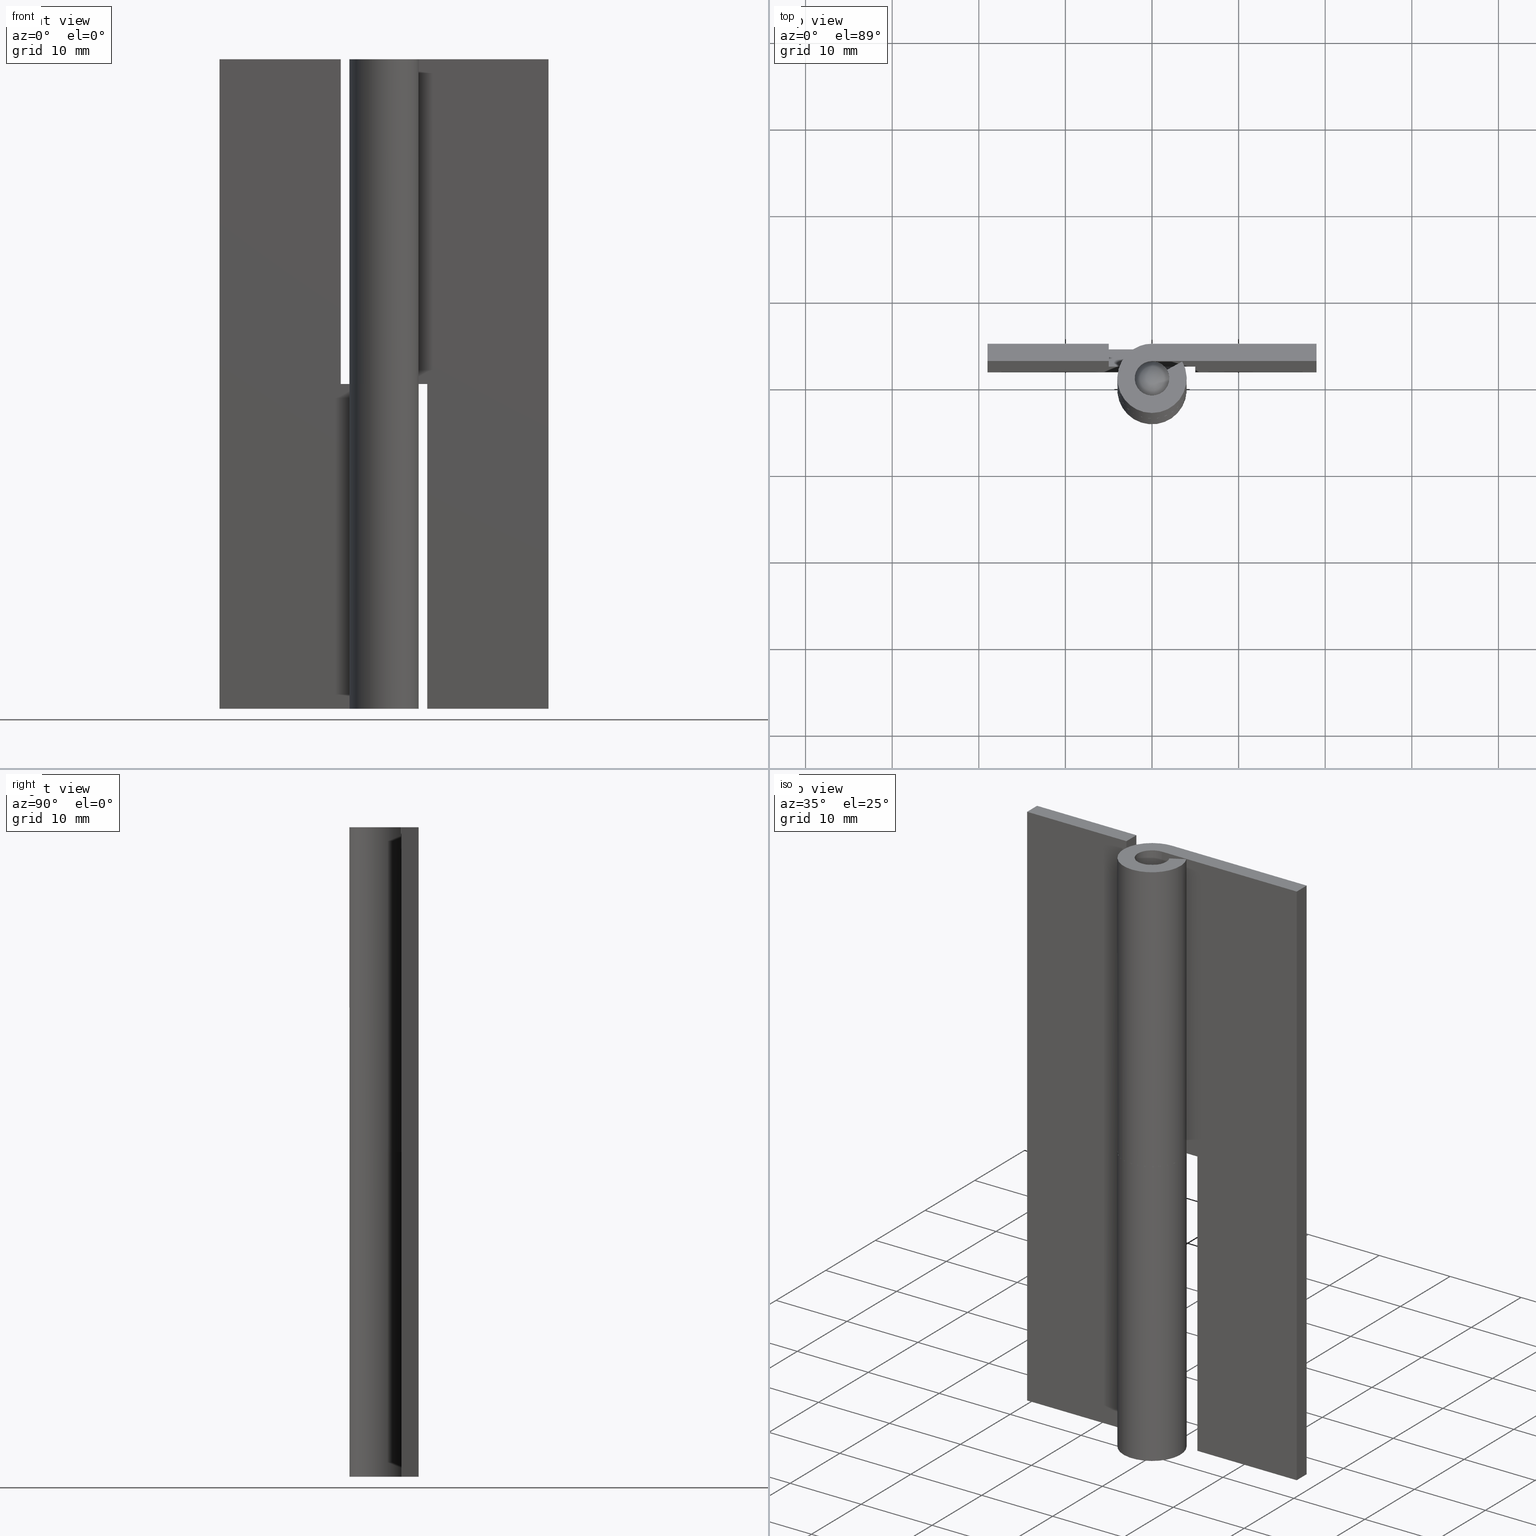
[diagram: canonical four-view strip — front | top / right | iso, engineering-drawing reading convention]
A machine part, canonical four-view strip (front | top / right | iso — engineering-drawing reading convention). The complete STEP part file that produces these views, byte-faithful:
ISO-10303-21;
HEADER;
/****************************************************************
 * Generated by software with PDE/Lib inside                    *
 * PDElib Version 4.4.1-0003, patched  Thursday August 19 11:58 *
 * International Technegroup Inc. (www.iti-oh.com)              *
 ****************************************************************/
FILE_DESCRIPTION((''),'2;1');
FILE_NAME('','2005-04-20T10:09:50',(''),(''),'','CADfix','');
FILE_SCHEMA(('AUTOMOTIVE_DESIGN'));
ENDSEC;
DATA;
#5=APPLICATION_CONTEXT('automotive design');
#6=APPLICATION_PROTOCOL_DEFINITION('Draft International Standard','automotive_design',1998,#5);
#7=PRODUCT_CONTEXT('None',#5,'mechanical');
#8=PRODUCT('shaft','','None',(#7));
#9=PRODUCT_RELATED_PRODUCT_CATEGORY('part','description',(#8));
#10=PRODUCT_DEFINITION_FORMATION('None','None',#8);
#11=PRODUCT_DEFINITION_CONTEXT('part definition',#5,'design');
#12=PRODUCT_DEFINITION('None','None',#10,#11);
#18=(NAMED_UNIT(*)PLANE_ANGLE_UNIT()SI_UNIT($,.RADIAN.));
#19=DIMENSIONAL_EXPONENTS(0.0,0.0,0.0,0.0,0.0,0.0,0.0);
#20=PLANE_ANGLE_MEASURE_WITH_UNIT(PLANE_ANGLE_MEASURE(0.017453292500000),#18);
#24=(CONVERSION_BASED_UNIT('DEGREE',#20)NAMED_UNIT(#19)PLANE_ANGLE_UNIT());
#28=(NAMED_UNIT(*)SI_UNIT($,.STERADIAN.)SOLID_ANGLE_UNIT());
#32=(LENGTH_UNIT()NAMED_UNIT(*)SI_UNIT(.MILLI.,.METRE.));
#34=UNCERTAINTY_MEASURE_WITH_UNIT(LENGTH_MEASURE(0.001000000000000),#32,'DISTANCE_ACCURACY_VALUE','');
#36=(GEOMETRIC_REPRESENTATION_CONTEXT(3)GLOBAL_UNCERTAINTY_ASSIGNED_CONTEXT((#34))GLOBAL_UNIT_ASSIGNED_CONTEXT((#24,#28,#32))REPRESENTATION_CONTEXT('None','None'));
#37=AXIS2_PLACEMENT_3D('',#38,#39,#40);
#38=CARTESIAN_POINT('',(0.0,0.0,0.0));
#39=DIRECTION('',(0.0,0.0,1.0));
#40=DIRECTION('',(1.0,0.0,0.0));
#41=ADVANCED_BREP_SHAPE_REPRESENTATION('',(#37,#274,#1088),#36);
#42=PRODUCT_DEFINITION_SHAPE('','',#12);
#43=SHAPE_DEFINITION_REPRESENTATION(#42,#41);
#44=CARTESIAN_POINT('',(-0.236068450853648,1.986018897426408,74.312505345657172));
#45=CARTESIAN_POINT('',(-0.179229443260732,1.992775075067972,74.312505345657172));
#46=CARTESIAN_POINT('',(-0.122097069522077,1.996269440741245,74.312505345657186));
#47=CARTESIAN_POINT('',(1.874172371219168,2.118366510263322,74.312505345657200));
#48=CARTESIAN_POINT('',(1.996269440741245,0.122097069522077,74.312505345657186));
#49=CARTESIAN_POINT('',(2.118366510263322,-1.874172371219168,74.312505345657200));
#50=CARTESIAN_POINT('',(0.122097069522077,-1.996269440741245,74.312505345657186));
#51=CARTESIAN_POINT('',(-0.236068450853648,1.986018897426408,-1.857812633641431));
#52=CARTESIAN_POINT('',(-0.179229443260732,1.992775075067972,-1.857812633641431));
#53=CARTESIAN_POINT('',(-0.122097069522077,1.996269440741245,-1.857812633641430));
#54=CARTESIAN_POINT('',(1.874172371219168,2.118366510263322,-1.857812633641430));
#55=CARTESIAN_POINT('',(1.996269440741245,0.122097069522077,-1.857812633641430));
#56=CARTESIAN_POINT('',(2.118366510263322,-1.874172371219168,-1.857812633641430));
#57=CARTESIAN_POINT('',(0.122097069522077,-1.996269440741245,-1.857812633641430));
#65=(BOUNDED_SURFACE()B_SPLINE_SURFACE(2,1,((#44,#51),(#45,#52),(#46,#53),(#47,#54),(#48,#55),(#49,#56),(#50,#57)),.UNSPECIFIED.,.F.,.F.,.U.)B_SPLINE_SURFACE_WITH_KNOTS((3,2,2,3),(2,2),(0.0,0.132548329594495,3.446256569456868,6.759964809319241),(0.0,76.170317979298630),.UNSPECIFIED.)GEOMETRIC_REPRESENTATION_ITEM()RATIONAL_B_SPLINE_SURFACE(((0.977505800795127,0.977505800795127),(0.988284271247462,0.988284271247462),(1.0,1.0),(0.707106781186548,0.707106781186548),(1.0,1.0),(0.707106781186548,0.707106781186548),(1.0,1.0)))REPRESENTATION_ITEM('')SURFACE());
#66=CARTESIAN_POINT('',(-0.236065875495914,1.986019124795656,72.500005215275309));
#67=VERTEX_POINT('',#66);
#68=CARTESIAN_POINT('',(1.999999687211385,0.0,72.500005215275294));
#69=VERTEX_POINT('',#68);
#70=CARTESIAN_POINT('',(-0.236065875495914,1.986019124795656,72.500005215275309));
#71=CARTESIAN_POINT('',(-0.118446924151209,1.999999687211386,72.500005215275294));
#72=CARTESIAN_POINT('',(0.0,1.999999687211385,72.500005215275294));
#73=CARTESIAN_POINT('',(1.999999687211385,1.999999687211385,72.500005215275309));
#74=CARTESIAN_POINT('',(1.999999687211385,0.0,72.500005215275294));
#82=(BOUNDED_CURVE()B_SPLINE_CURVE(2,(#70,#71,#72,#73,#74),.UNSPECIFIED.,.F.,.U.)B_SPLINE_CURVE_WITH_KNOTS((3,2,3),(0.229562691884152,0.250000000000000,0.500000000000000),.UNSPECIFIED.)CURVE()GEOMETRIC_REPRESENTATION_ITEM()RATIONAL_B_SPLINE_CURVE((0.956027182199545,0.976056204168268,1.0,0.707106781186547,1.0))REPRESENTATION_ITEM(''));
#83=EDGE_CURVE('',#67,#69,#82,.T.);
#84=ORIENTED_EDGE('',*,*,#83,.T.);
#85=CARTESIAN_POINT('',(0.122097065094366,-1.996269362668719,72.500005215275280));
#86=VERTEX_POINT('',#85);
#87=CARTESIAN_POINT('',(1.999999687211385,0.0,72.500005215275294));
#88=CARTESIAN_POINT('',(1.999999687211385,-1.881411838915614,72.500005215275309));
#89=CARTESIAN_POINT('',(0.122097065094366,-1.996269362668719,72.500005215275280));
#97=(BOUNDED_CURVE()B_SPLINE_CURVE(2,(#87,#88,#89),.UNSPECIFIED.,.F.,.U.)B_SPLINE_CURVE_WITH_KNOTS((3,3),(0.500000000000000,0.739332962182135),.UNSPECIFIED.)CURVE()GEOMETRIC_REPRESENTATION_ITEM()RATIONAL_B_SPLINE_CURVE((1.0,0.719603993353265,0.976072041544968))REPRESENTATION_ITEM(''));
#98=EDGE_CURVE('',#69,#86,#97,.T.);
#99=ORIENTED_EDGE('',*,*,#98,.T.);
#100=CARTESIAN_POINT('',(0.122097074642030,-1.996269518771432,6.661338E-016));
#101=VERTEX_POINT('',#100);
#102=CARTESIAN_POINT('',(0.122097065094366,-1.996269362668719,72.500005215275280));
#103=CARTESIAN_POINT('',(0.122097074642030,-1.996269518771432,6.661338E-016));
#104=QUASI_UNIFORM_CURVE('',1,(#102,#103),.UNSPECIFIED.,.F.,.U.);
#105=EDGE_CURVE('',#86,#101,#104,.T.);
#106=ORIENTED_EDGE('',*,*,#105,.T.);
#107=CARTESIAN_POINT('',(2.000000000000225,0.0,0.0));
#108=VERTEX_POINT('',#107);
#109=CARTESIAN_POINT('',(2.000000000000225,0.0,0.0));
#110=CARTESIAN_POINT('',(2.000000000000225,-1.881412133157949,0.0));
#111=CARTESIAN_POINT('',(0.122097074642030,-1.996269518771432,6.661338E-016));
#119=(BOUNDED_CURVE()B_SPLINE_CURVE(2,(#109,#110,#111),.UNSPECIFIED.,.F.,.U.)B_SPLINE_CURVE_WITH_KNOTS((3,3),(0.500000000000000,0.739332962182133),.UNSPECIFIED.)CURVE()GEOMETRIC_REPRESENTATION_ITEM()RATIONAL_B_SPLINE_CURVE((1.0,0.719603993353267,0.976072041544963))REPRESENTATION_ITEM(''));
#120=EDGE_CURVE('',#108,#101,#119,.T.);
#121=ORIENTED_EDGE('',*,*,#120,.F.);
#122=CARTESIAN_POINT('',(-0.236065926512480,1.986019276227036,6.814628E-016));
#123=VERTEX_POINT('',#122);
#124=CARTESIAN_POINT('',(-0.236065926512480,1.986019276227036,6.814628E-016));
#125=CARTESIAN_POINT('',(-0.118446959126173,2.000000000000226,0.0));
#126=CARTESIAN_POINT('',(0.0,2.000000000000225,0.0));
#127=CARTESIAN_POINT('',(2.000000000000225,2.000000000000225,0.0));
#128=CARTESIAN_POINT('',(2.000000000000225,0.0,0.0));
#136=(BOUNDED_CURVE()B_SPLINE_CURVE(2,(#124,#125,#126,#127,#128),.UNSPECIFIED.,.F.,.U.)B_SPLINE_CURVE_WITH_KNOTS((3,2,3),(0.229562689113676,0.250000000000000,0.500000000000000),.UNSPECIFIED.)CURVE()GEOMETRIC_REPRESENTATION_ITEM()RATIONAL_B_SPLINE_CURVE((0.956027176769288,0.976056200922454,1.0,0.707106781186548,1.0))REPRESENTATION_ITEM(''));
#137=EDGE_CURVE('',#123,#108,#136,.T.);
#138=ORIENTED_EDGE('',*,*,#137,.F.);
#139=CARTESIAN_POINT('',(-0.236065875495914,1.986019124795656,72.500005215275309));
#140=CARTESIAN_POINT('',(-0.236065926512480,1.986019276227036,6.814628E-016));
#141=QUASI_UNIFORM_CURVE('',1,(#139,#140),.UNSPECIFIED.,.F.,.U.);
#142=EDGE_CURVE('',#67,#123,#141,.T.);
#143=ORIENTED_EDGE('',*,*,#142,.F.);
#144=EDGE_LOOP('',(#84,#99,#106,#121,#138,#143));
#145=FACE_OUTER_BOUND('',#144,.T.);
#146=ADVANCED_FACE('',(#145),#65,.T.);
#147=CARTESIAN_POINT('',(0.122097069522077,-1.996269440741245,74.312505345657186));
#148=CARTESIAN_POINT('',(-1.874172371219168,-2.118366510263322,74.312505345657200));
#149=CARTESIAN_POINT('',(-1.996269440741245,-0.122097069522077,74.312505345657186));
#150=CARTESIAN_POINT('',(-2.111572228346221,1.763086843810716,74.312505345657186));
#151=CARTESIAN_POINT('',(-0.236068450853648,1.986018897426408,74.312505345657172));
#152=CARTESIAN_POINT('',(0.122097069522077,-1.996269440741245,-1.857812633641430));
#153=CARTESIAN_POINT('',(-1.874172371219168,-2.118366510263322,-1.857812633641430));
#154=CARTESIAN_POINT('',(-1.996269440741245,-0.122097069522077,-1.857812633641430));
#155=CARTESIAN_POINT('',(-2.111572228346221,1.763086843810716,-1.857812633641430));
#156=CARTESIAN_POINT('',(-0.236068450853648,1.986018897426408,-1.857812633641431));
#164=(BOUNDED_SURFACE()B_SPLINE_SURFACE(2,1,((#147,#152),(#148,#153),(#149,#154),(#150,#155),(#151,#156)),.UNSPECIFIED.,.F.,.F.,.U.)B_SPLINE_SURFACE_WITH_KNOTS((3,2,3),(2,2),(0.0,3.313708239862373,6.494868150130251),(0.0,76.170317979298630),.UNSPECIFIED.)GEOMETRIC_REPRESENTATION_ITEM()RATIONAL_B_SPLINE_SURFACE(((1.0,1.0),(0.707106781186548,0.707106781186548),(1.0,1.0),(0.718822509939086,0.718822509939086),(0.977505800795127,0.977505800795127)))REPRESENTATION_ITEM('')SURFACE());
#165=CARTESIAN_POINT('',(-1.999999687211385,0.0,72.500005215275294));
#166=VERTEX_POINT('',#165);
#167=CARTESIAN_POINT('',(-1.999999687211385,0.0,72.500005215275294));
#168=CARTESIAN_POINT('',(-1.999999687211385,1.776351085464281,72.500005215275294));
#169=CARTESIAN_POINT('',(-0.236065875495914,1.986019124795656,72.500005215275309));
#177=(BOUNDED_CURVE()B_SPLINE_CURVE(2,(#167,#168,#169),.UNSPECIFIED.,.F.,.U.)B_SPLINE_CURVE_WITH_KNOTS((3,3),(0.0,0.229562691884152),.UNSPECIFIED.)CURVE()GEOMETRIC_REPRESENTATION_ITEM()RATIONAL_B_SPLINE_CURVE((1.0,0.731050577018279,0.956027182199545))REPRESENTATION_ITEM(''));
#178=EDGE_CURVE('',#166,#67,#177,.T.);
#179=ORIENTED_EDGE('',*,*,#178,.T.);
#180=ORIENTED_EDGE('',*,*,#142,.T.);
#181=CARTESIAN_POINT('',(-2.000000000000225,0.0,0.0));
#182=VERTEX_POINT('',#181);
#183=CARTESIAN_POINT('',(-2.000000000000225,0.0,0.0));
#184=CARTESIAN_POINT('',(-2.000000000000225,1.776351333950958,0.0));
#185=CARTESIAN_POINT('',(-0.236065926512480,1.986019276227036,6.814628E-016));
#193=(BOUNDED_CURVE()B_SPLINE_CURVE(2,(#183,#184,#185),.UNSPECIFIED.,.F.,.U.)B_SPLINE_CURVE_WITH_KNOTS((3,3),(0.0,0.229562689113676),.UNSPECIFIED.)CURVE()GEOMETRIC_REPRESENTATION_ITEM()RATIONAL_B_SPLINE_CURVE((1.0,0.731050580264094,0.956027176769288))REPRESENTATION_ITEM(''));
#194=EDGE_CURVE('',#182,#123,#193,.T.);
#195=ORIENTED_EDGE('',*,*,#194,.F.);
#196=CARTESIAN_POINT('',(0.122097074642030,-1.996269518771432,6.661338E-016));
#197=CARTESIAN_POINT('',(0.061105526944283,-2.000000000000225,0.0));
#198=CARTESIAN_POINT('',(0.0,-2.000000000000225,0.0));
#199=CARTESIAN_POINT('',(-2.000000000000225,-2.000000000000225,0.0));
#200=CARTESIAN_POINT('',(-2.000000000000225,0.0,0.0));
#208=(BOUNDED_CURVE()B_SPLINE_CURVE(2,(#196,#197,#198,#199,#200),.UNSPECIFIED.,.F.,.U.)B_SPLINE_CURVE_WITH_KNOTS((3,2,3),(0.739332962182134,0.750000000000000,1.0),.UNSPECIFIED.)CURVE()GEOMETRIC_REPRESENTATION_ITEM()RATIONAL_B_SPLINE_CURVE((0.976072041544964,0.987502787833281,1.0,0.707106781186548,1.0))REPRESENTATION_ITEM(''));
#209=EDGE_CURVE('',#101,#182,#208,.T.);
#210=ORIENTED_EDGE('',*,*,#209,.F.);
#211=ORIENTED_EDGE('',*,*,#105,.F.);
#212=CARTESIAN_POINT('',(0.122097065094366,-1.996269362668719,72.500005215275280));
#213=CARTESIAN_POINT('',(0.061105517387706,-1.999999687211385,72.500005215275294));
#214=CARTESIAN_POINT('',(0.0,-1.999999687211385,72.500005215275294));
#215=CARTESIAN_POINT('',(-1.999999687211385,-1.999999687211385,72.500005215275309));
#216=CARTESIAN_POINT('',(-1.999999687211385,0.0,72.500005215275294));
#224=(BOUNDED_CURVE()B_SPLINE_CURVE(2,(#212,#213,#214,#215,#216),.UNSPECIFIED.,.F.,.U.)B_SPLINE_CURVE_WITH_KNOTS((3,2,3),(0.739332962182136,0.750000000000000,1.0),.UNSPECIFIED.)CURVE()GEOMETRIC_REPRESENTATION_ITEM()RATIONAL_B_SPLINE_CURVE((0.976072041544969,0.987502787833284,1.0,0.707106781186547,1.0))REPRESENTATION_ITEM(''));
#225=EDGE_CURVE('',#86,#166,#224,.T.);
#226=ORIENTED_EDGE('',*,*,#225,.T.);
#227=EDGE_LOOP('',(#179,#180,#195,#210,#211,#226));
#228=FACE_OUTER_BOUND('',#227,.T.);
#229=ADVANCED_FACE('',(#228),#164,.T.);
#230=CARTESIAN_POINT('',(-1.461900274785523,-1.461900274785522,71.659822701669214));
#231=CARTESIAN_POINT('',(-1.016368766600802,-2.032737533201607,72.373021109785995));
#232=CARTESIAN_POINT('',(1.016368766600804,-2.032737533201607,72.373021109785924));
#233=CARTESIAN_POINT('',(1.461900274785522,-1.461900274785522,71.659822701669214));
#234=CARTESIAN_POINT('',(-2.032737533201606,-1.016368766600804,72.373021109785995));
#235=CARTESIAN_POINT('',(-1.667480023164941,-1.667480023164947,74.000005000000016));
#236=CARTESIAN_POINT('',(1.667480023164950,-1.667480023164947,74.000005000000002));
#237=CARTESIAN_POINT('',(2.032737533201607,-1.016368766600804,72.373021109785924));
#238=CARTESIAN_POINT('',(-2.032737533201606,1.016368766600803,72.373021109785995));
#239=CARTESIAN_POINT('',(-1.667480023164941,1.667480023164944,74.000005000000016));
#240=CARTESIAN_POINT('',(1.667480023164950,1.667480023164944,74.000005000000002));
#241=CARTESIAN_POINT('',(2.032737533201607,1.016368766600803,72.373021109785924));
#242=CARTESIAN_POINT('',(-1.461900274785523,1.461900274785523,71.659822701669214));
#243=CARTESIAN_POINT('',(-1.016368766600802,2.032737533201607,72.373021109785995));
#244=CARTESIAN_POINT('',(1.016368766600804,2.032737533201607,72.373021109785995));
#245=CARTESIAN_POINT('',(1.461900274785522,1.461900274785523,71.659822701669214));
#253=(BOUNDED_SURFACE()B_SPLINE_SURFACE(2,2,((#230,#234,#238,#242),(#231,#235,#239,#243),(#232,#236,#240,#244),(#233,#237,#241,#245)),.UNSPECIFIED.,.F.,.F.,.U.)B_SPLINE_SURFACE_WITH_KNOTS((3,1,3),(3,1,3),(0.0,2.525886884444874,5.051773768889748),(0.0,2.525886884444872,5.051773768889745),.UNSPECIFIED.)GEOMETRIC_REPRESENTATION_ITEM()RATIONAL_B_SPLINE_SURFACE(((2.281250030423017,1.640625015211509,1.640625015211509,2.281250030423017),(1.640625015211509,1.0,1.0,1.640625015211509),(1.640625015211509,1.0,1.0,1.640625015211509),(2.281250030423017,1.640625015211509,1.640625015211509,2.281250030423017)))REPRESENTATION_ITEM('')SURFACE());
#254=ORIENTED_EDGE('',*,*,#225,.F.);
#255=ORIENTED_EDGE('',*,*,#98,.F.);
#256=ORIENTED_EDGE('',*,*,#83,.F.);
#257=ORIENTED_EDGE('',*,*,#178,.F.);
#258=EDGE_LOOP('',(#254,#255,#256,#257));
#259=FACE_OUTER_BOUND('',#258,.T.);
#260=ADVANCED_FACE('',(#259),#253,.T.);
#261=CARTESIAN_POINT('',(-2.199799992247471,-2.199751314024844,0.0));
#262=CARTESIAN_POINT('',(2.199800099535832,-2.199751314024844,0.0));
#263=CARTESIAN_POINT('',(-2.199799992247471,2.199763616423525,0.0));
#264=CARTESIAN_POINT('',(2.199800099535832,2.199763616423525,0.0));
#265=B_SPLINE_SURFACE_WITH_KNOTS('',1,1,((#261,#263),(#262,#264)),.UNSPECIFIED.,.F.,.F.,.U.,(2,2),(2,2),(0.0,4.399600091783302),(0.0,4.399514930448368),.UNSPECIFIED.);
#266=ORIENTED_EDGE('',*,*,#194,.T.);
#267=ORIENTED_EDGE('',*,*,#137,.T.);
#268=ORIENTED_EDGE('',*,*,#120,.T.);
#269=ORIENTED_EDGE('',*,*,#209,.T.);
#270=EDGE_LOOP('',(#266,#267,#268,#269));
#271=FACE_OUTER_BOUND('',#270,.T.);
#272=ADVANCED_FACE('',(#271),#265,.F.);
#273=CLOSED_SHELL('',(#146,#229,#260,#272));
#274=MANIFOLD_SOLID_BREP('shaft',#273);
#275=APPLICATION_CONTEXT('automotive design');
#276=APPLICATION_PROTOCOL_DEFINITION('Draft International Standard','automotive_design',1998,#275);
#277=PRODUCT_CONTEXT('None',#275,'mechanical');
#278=PRODUCT('hinge piece_B','','None',(#277));
#279=PRODUCT_RELATED_PRODUCT_CATEGORY('part','description',(#278));
#280=PRODUCT_DEFINITION_FORMATION('None','None',#278);
#281=PRODUCT_DEFINITION_CONTEXT('part definition',#275,'design');
#282=PRODUCT_DEFINITION('None','None',#280,#281);
#288=(NAMED_UNIT(*)PLANE_ANGLE_UNIT()SI_UNIT($,.RADIAN.));
#289=DIMENSIONAL_EXPONENTS(0.0,0.0,0.0,0.0,0.0,0.0,0.0);
#290=PLANE_ANGLE_MEASURE_WITH_UNIT(PLANE_ANGLE_MEASURE(0.017453292500000),#288);
#294=(CONVERSION_BASED_UNIT('DEGREE',#290)NAMED_UNIT(#289)PLANE_ANGLE_UNIT());
#298=(NAMED_UNIT(*)SI_UNIT($,.STERADIAN.)SOLID_ANGLE_UNIT());
#302=(LENGTH_UNIT()NAMED_UNIT(*)SI_UNIT(.MILLI.,.METRE.));
#304=UNCERTAINTY_MEASURE_WITH_UNIT(LENGTH_MEASURE(0.001000000000000),#302,'DISTANCE_ACCURACY_VALUE','');
#306=(GEOMETRIC_REPRESENTATION_CONTEXT(3)GLOBAL_UNCERTAINTY_ASSIGNED_CONTEXT((#304))GLOBAL_UNIT_ASSIGNED_CONTEXT((#294,#298,#302))REPRESENTATION_CONTEXT('None','None'));
#307=AXIS2_PLACEMENT_3D('',#308,#309,#310);
#308=CARTESIAN_POINT('',(0.0,0.0,0.0));
#309=DIRECTION('',(0.0,0.0,1.0));
#310=DIRECTION('',(1.0,0.0,0.0));
#311=ADVANCED_BREP_SHAPE_REPRESENTATION('',(#307,#661,#1104),#306);
#312=PRODUCT_DEFINITION_SHAPE('','',#282);
#313=SHAPE_DEFINITION_REPRESENTATION(#312,#311);
#314=CARTESIAN_POINT('',(4.999999999999901,1.900100003876388,39.373124927317733));
#315=CARTESIAN_POINT('',(4.999999999999901,1.900100003876388,-1.873125933146104));
#316=CARTESIAN_POINT('',(4.999999999999901,4.099900049767792,39.373124927317733));
#317=CARTESIAN_POINT('',(4.999999999999901,4.099900049767792,-1.873125933146104));
#318=B_SPLINE_SURFACE_WITH_KNOTS('',1,1,((#314,#316),(#315,#317)),.UNSPECIFIED.,.F.,.F.,.U.,(2,2),(2,2),(0.0,41.246250860463832),(0.0,2.199800045891404),.UNSPECIFIED.);
#319=CARTESIAN_POINT('',(4.999999999999901,2.0,0.0));
#320=VERTEX_POINT('',#319);
#321=CARTESIAN_POINT('',(4.999999999999901,2.0,37.500000000000000));
#322=VERTEX_POINT('',#321);
#323=CARTESIAN_POINT('',(4.999999999999901,2.0,0.0));
#324=CARTESIAN_POINT('',(4.999999999999901,2.0,37.500000000000000));
#325=QUASI_UNIFORM_CURVE('',1,(#323,#324),.UNSPECIFIED.,.F.,.U.);
#326=EDGE_CURVE('',#320,#322,#325,.T.);
#327=ORIENTED_EDGE('',*,*,#326,.T.);
#328=CARTESIAN_POINT('',(4.999999999999901,4.0,37.500000000000000));
#329=VERTEX_POINT('',#328);
#330=CARTESIAN_POINT('',(4.999999999999901,4.0,37.500000000000000));
#331=CARTESIAN_POINT('',(4.999999999999901,2.0,37.500000000000000));
#332=QUASI_UNIFORM_CURVE('',1,(#330,#331),.UNSPECIFIED.,.F.,.U.);
#333=EDGE_CURVE('',#329,#322,#332,.T.);
#334=ORIENTED_EDGE('',*,*,#333,.F.);
#335=CARTESIAN_POINT('',(4.999999999999901,4.0,0.0));
#336=VERTEX_POINT('',#335);
#337=CARTESIAN_POINT('',(4.999999999999901,4.0,0.0));
#338=CARTESIAN_POINT('',(4.999999999999901,4.0,37.500000000000000));
#339=QUASI_UNIFORM_CURVE('',1,(#337,#338),.UNSPECIFIED.,.F.,.U.);
#340=EDGE_CURVE('',#336,#329,#339,.T.);
#341=ORIENTED_EDGE('',*,*,#340,.F.);
#342=CARTESIAN_POINT('',(4.999999999999901,4.0,0.0));
#343=CARTESIAN_POINT('',(4.999999999999901,2.0,0.0));
#344=QUASI_UNIFORM_CURVE('',1,(#342,#343),.UNSPECIFIED.,.F.,.U.);
#345=EDGE_CURVE('',#336,#320,#344,.T.);
#346=ORIENTED_EDGE('',*,*,#345,.T.);
#347=EDGE_LOOP('',(#327,#334,#341,#346));
#348=FACE_OUTER_BOUND('',#347,.T.);
#349=ADVANCED_FACE('',(#348),#318,.F.);
#350=CARTESIAN_POINT('',(-4.449510686776960,-4.399443773204149,37.500000000000000));
#351=CARTESIAN_POINT('',(5.449548354508648,-4.399443773204149,37.500000000000000));
#352=CARTESIAN_POINT('',(-4.449510686776960,4.399592767519330,37.500000000000000));
#353=CARTESIAN_POINT('',(5.449548354508648,4.399592767519330,37.500000000000000));
#354=B_SPLINE_SURFACE_WITH_KNOTS('',1,1,((#350,#352),(#351,#353)),.UNSPECIFIED.,.F.,.F.,.U.,(2,2),(2,2),(0.0,9.899059041285607),(0.0,8.799036540723479),.UNSPECIFIED.);
#355=CARTESIAN_POINT('',(0.0,4.0,37.500000000000000));
#356=VERTEX_POINT('',#355);
#357=CARTESIAN_POINT('',(4.999999999999901,4.0,37.500000000000000));
#358=CARTESIAN_POINT('',(0.0,4.0,37.500000000000000));
#359=QUASI_UNIFORM_CURVE('',1,(#357,#358),.UNSPECIFIED.,.F.,.U.);
#360=EDGE_CURVE('',#329,#356,#359,.T.);
#361=ORIENTED_EDGE('',*,*,#360,.F.);
#362=ORIENTED_EDGE('',*,*,#333,.T.);
#363=CARTESIAN_POINT('',(-3.673807E-016,2.0,37.500000000000000));
#364=VERTEX_POINT('',#363);
#365=CARTESIAN_POINT('',(4.999999999999901,2.0,37.500000000000000));
#366=CARTESIAN_POINT('',(-3.673807E-016,2.0,37.500000000000000));
#367=QUASI_UNIFORM_CURVE('',1,(#365,#366),.UNSPECIFIED.,.F.,.U.);
#368=EDGE_CURVE('',#322,#364,#367,.T.);
#369=ORIENTED_EDGE('',*,*,#368,.T.);
#370=CARTESIAN_POINT('',(1.746245973510030,0.975000000000000,37.500000000000000));
#371=VERTEX_POINT('',#370);
#372=CARTESIAN_POINT('',(0.0,2.0,37.500000000000000));
#373=CARTESIAN_POINT('',(-1.528952271725726,1.999999999999999,37.500000000000000));
#374=CARTESIAN_POINT('',(-1.929978971664208,0.524577133445564,37.500000000000000));
#375=CARTESIAN_POINT('',(-2.331005671602691,-0.950845733108871,37.500000000000000));
#376=CARTESIAN_POINT('',(-1.012422836565829,-1.724818831066034,37.500000000000000));
#377=CARTESIAN_POINT('',(0.306159998471033,-2.498791929023198,37.500000000000000));
#378=CARTESIAN_POINT('',(1.398885102223678,-1.429377651559115,37.500000000000000));
#379=CARTESIAN_POINT('',(2.491610205976323,-0.359963374095032,37.500000000000000));
#380=CARTESIAN_POINT('',(1.746245973510032,0.975000000000000,37.500000000000000));
#388=(BOUNDED_CURVE()B_SPLINE_CURVE(2,(#372,#373,#374,#375,#376,#377,#378,#379,#380),.UNSPECIFIED.,.F.,.U.)B_SPLINE_CURVE_WITH_KNOTS((3,2,2,2,3),(0.0,0.250000000000000,0.500000000000000,0.750000000000000,1.0),.UNSPECIFIED.)CURVE()GEOMETRIC_REPRESENTATION_ITEM()RATIONAL_B_SPLINE_CURVE((1.0,0.794445897063728,1.0,0.794445897063728,1.0,0.794445897063728,1.0,0.794445897063728,1.0))REPRESENTATION_ITEM(''));
#389=EDGE_CURVE('',#364,#371,#388,.T.);
#390=ORIENTED_EDGE('',*,*,#389,.T.);
#391=CARTESIAN_POINT('',(3.492491947020065,1.950000000000000,37.500000000000000));
#392=VERTEX_POINT('',#391);
#393=CARTESIAN_POINT('',(1.746245973510030,0.975000000000000,37.500000000000000));
#394=CARTESIAN_POINT('',(3.492491947020065,1.950000000000000,37.500000000000000));
#395=QUASI_UNIFORM_CURVE('',1,(#393,#394),.UNSPECIFIED.,.F.,.U.);
#396=EDGE_CURVE('',#371,#392,#395,.T.);
#397=ORIENTED_EDGE('',*,*,#396,.T.);
#398=CARTESIAN_POINT('',(0.0,4.0,37.500000000000000));
#399=CARTESIAN_POINT('',(-3.057904543451451,4.000000000000001,37.500000000000000));
#400=CARTESIAN_POINT('',(-3.859957943328416,1.049154266891131,37.500000000000000));
#401=CARTESIAN_POINT('',(-4.662011343205381,-1.901691466217739,37.500000000000000));
#402=CARTESIAN_POINT('',(-2.024845673131660,-3.449637662132068,37.500000000000000));
#403=CARTESIAN_POINT('',(0.612319996942062,-4.997583858046397,37.500000000000000));
#404=CARTESIAN_POINT('',(2.797770204447354,-2.858755303118232,37.500000000000000));
#405=CARTESIAN_POINT('',(4.983220411952645,-0.719926748190068,37.500000000000000));
#406=CARTESIAN_POINT('',(3.492491947020066,1.949999999999997,37.500000000000000));
#414=(BOUNDED_CURVE()B_SPLINE_CURVE(2,(#398,#399,#400,#401,#402,#403,#404,#405,#406),.UNSPECIFIED.,.F.,.U.)B_SPLINE_CURVE_WITH_KNOTS((3,2,2,2,3),(0.0,0.250000000000000,0.500000000000000,0.750000000000000,1.0),.UNSPECIFIED.)CURVE()GEOMETRIC_REPRESENTATION_ITEM()RATIONAL_B_SPLINE_CURVE((1.0,0.794445897063728,1.0,0.794445897063728,1.0,0.794445897063728,1.0,0.794445897063728,1.0))REPRESENTATION_ITEM(''));
#415=EDGE_CURVE('',#356,#392,#414,.T.);
#416=ORIENTED_EDGE('',*,*,#415,.F.);
#417=EDGE_LOOP('',(#361,#362,#369,#390,#397,#416));
#418=FACE_OUTER_BOUND('',#417,.T.);
#419=ADVANCED_FACE('',(#418),#354,.F.);
#420=CARTESIAN_POINT('',(-5.148811061724082,-4.399443773540844,75.0));
#421=CARTESIAN_POINT('',(20.148855379252549,-4.399443773540844,75.0));
#422=CARTESIAN_POINT('',(-5.148811061724082,4.399592767535347,75.0));
#423=CARTESIAN_POINT('',(20.148855379252549,4.399592767535347,75.0));
#424=B_SPLINE_SURFACE_WITH_KNOTS('',1,1,((#420,#422),(#421,#423)),.UNSPECIFIED.,.F.,.F.,.U.,(2,2),(2,2),(0.0,25.297666440976631),(0.0,8.799036541076191),.UNSPECIFIED.);
#425=CARTESIAN_POINT('',(19.000007999999902,2.0,75.0));
#426=VERTEX_POINT('',#425);
#427=CARTESIAN_POINT('',(19.000007999999902,4.0,75.0));
#428=VERTEX_POINT('',#427);
#429=CARTESIAN_POINT('',(19.000007999999902,2.0,75.0));
#430=CARTESIAN_POINT('',(19.000007999999902,4.0,75.0));
#431=QUASI_UNIFORM_CURVE('',1,(#429,#430),.UNSPECIFIED.,.F.,.U.);
#432=EDGE_CURVE('',#426,#428,#431,.T.);
#433=ORIENTED_EDGE('',*,*,#432,.T.);
#434=CARTESIAN_POINT('',(0.0,4.0,75.0));
#435=VERTEX_POINT('',#434);
#436=CARTESIAN_POINT('',(19.000007999999902,4.0,75.0));
#437=CARTESIAN_POINT('',(0.0,4.0,75.0));
#438=QUASI_UNIFORM_CURVE('',1,(#436,#437),.UNSPECIFIED.,.F.,.U.);
#439=EDGE_CURVE('',#428,#435,#438,.T.);
#440=ORIENTED_EDGE('',*,*,#439,.T.);
#441=CARTESIAN_POINT('',(3.492491947020065,1.950000000000000,75.0));
#442=VERTEX_POINT('',#441);
#443=CARTESIAN_POINT('',(3.492491947020065,1.949999999999999,75.0));
#444=CARTESIAN_POINT('',(4.983220411952646,-0.719926748190065,75.0));
#445=CARTESIAN_POINT('',(2.797770204447355,-2.858755303118231,75.0));
#446=CARTESIAN_POINT('',(0.612319996942063,-4.997583858046395,75.0));
#447=CARTESIAN_POINT('',(-2.024845673131658,-3.449637662132068,75.0));
#448=CARTESIAN_POINT('',(-4.662011343205381,-1.901691466217742,75.0));
#449=CARTESIAN_POINT('',(-3.859957943328416,1.049154266891129,75.0));
#450=CARTESIAN_POINT('',(-3.057904543451453,4.0,75.0));
#451=CARTESIAN_POINT('',(0.0,4.0,75.0));
#459=(BOUNDED_CURVE()B_SPLINE_CURVE(2,(#443,#444,#445,#446,#447,#448,#449,#450,#451),.UNSPECIFIED.,.F.,.U.)B_SPLINE_CURVE_WITH_KNOTS((3,2,2,2,3),(0.0,0.250000000000000,0.500000000000000,0.750000000000000,1.0),.UNSPECIFIED.)CURVE()GEOMETRIC_REPRESENTATION_ITEM()RATIONAL_B_SPLINE_CURVE((1.0,0.794445897063728,1.0,0.794445897063728,1.0,0.794445897063728,1.0,0.794445897063728,1.0))REPRESENTATION_ITEM(''));
#460=EDGE_CURVE('',#442,#435,#459,.T.);
#461=ORIENTED_EDGE('',*,*,#460,.F.);
#462=CARTESIAN_POINT('',(1.746245973510030,0.975000000000000,75.0));
#463=VERTEX_POINT('',#462);
#464=CARTESIAN_POINT('',(3.492491947020065,1.950000000000000,75.0));
#465=CARTESIAN_POINT('',(1.746245973510030,0.975000000000000,75.0));
#466=QUASI_UNIFORM_CURVE('',1,(#464,#465),.UNSPECIFIED.,.F.,.U.);
#467=EDGE_CURVE('',#442,#463,#466,.T.);
#468=ORIENTED_EDGE('',*,*,#467,.T.);
#469=CARTESIAN_POINT('',(-3.673819E-016,2.0,75.0));
#470=VERTEX_POINT('',#469);
#471=CARTESIAN_POINT('',(1.746245973510032,0.975000000000001,75.0));
#472=CARTESIAN_POINT('',(2.491610205976324,-0.359963374095030,75.0));
#473=CARTESIAN_POINT('',(1.398885102223679,-1.429377651559114,75.0));
#474=CARTESIAN_POINT('',(0.306159998471033,-2.498791929023199,75.0));
#475=CARTESIAN_POINT('',(-1.012422836565829,-1.724818831066034,75.0));
#476=CARTESIAN_POINT('',(-2.331005671602691,-0.950845733108871,75.0));
#477=CARTESIAN_POINT('',(-1.929978971664208,0.524577133445564,75.0));
#478=CARTESIAN_POINT('',(-1.528952271725726,2.000000000000000,75.0));
#479=CARTESIAN_POINT('',(0.0,2.0,75.0));
#487=(BOUNDED_CURVE()B_SPLINE_CURVE(2,(#471,#472,#473,#474,#475,#476,#477,#478,#479),.UNSPECIFIED.,.F.,.U.)B_SPLINE_CURVE_WITH_KNOTS((3,2,2,2,3),(0.0,0.250000000000000,0.500000000000000,0.750000000000000,1.0),.UNSPECIFIED.)CURVE()GEOMETRIC_REPRESENTATION_ITEM()RATIONAL_B_SPLINE_CURVE((1.0,0.794445897063728,1.0,0.794445897063728,1.0,0.794445897063728,1.0,0.794445897063728,1.0))REPRESENTATION_ITEM(''));
#488=EDGE_CURVE('',#463,#470,#487,.T.);
#489=ORIENTED_EDGE('',*,*,#488,.T.);
#490=CARTESIAN_POINT('',(-3.673819E-016,2.0,75.0));
#491=CARTESIAN_POINT('',(19.000007999999902,2.0,75.0));
#492=QUASI_UNIFORM_CURVE('',1,(#490,#491),.UNSPECIFIED.,.F.,.U.);
#493=EDGE_CURVE('',#470,#426,#492,.T.);
#494=ORIENTED_EDGE('',*,*,#493,.T.);
#495=EDGE_LOOP('',(#433,#440,#461,#468,#489,#494));
#496=FACE_OUTER_BOUND('',#495,.T.);
#497=ADVANCED_FACE('',(#496),#424,.T.);
#498=CARTESIAN_POINT('',(4.300699677552494,1.900100003876388,0.0));
#499=CARTESIAN_POINT('',(19.699307696598179,1.900100003876388,0.0));
#500=CARTESIAN_POINT('',(4.300699677552494,4.099900049767792,0.0));
#501=CARTESIAN_POINT('',(19.699307696598179,4.099900049767792,0.0));
#502=B_SPLINE_SURFACE_WITH_KNOTS('',1,1,((#498,#500),(#499,#501)),.UNSPECIFIED.,.F.,.F.,.U.,(2,2),(2,2),(0.0,15.398608019045691),(0.0,2.199800045891404),.UNSPECIFIED.);
#503=ORIENTED_EDGE('',*,*,#345,.F.);
#504=CARTESIAN_POINT('',(19.000007999999902,4.0,0.0));
#505=VERTEX_POINT('',#504);
#506=CARTESIAN_POINT('',(19.000007999999902,4.0,0.0));
#507=CARTESIAN_POINT('',(4.999999999999901,4.0,0.0));
#508=QUASI_UNIFORM_CURVE('',1,(#506,#507),.UNSPECIFIED.,.F.,.U.);
#509=EDGE_CURVE('',#505,#336,#508,.T.);
#510=ORIENTED_EDGE('',*,*,#509,.F.);
#511=CARTESIAN_POINT('',(19.000007999999902,2.0,0.0));
#512=VERTEX_POINT('',#511);
#513=CARTESIAN_POINT('',(19.000007999999902,2.0,0.0));
#514=CARTESIAN_POINT('',(19.000007999999902,4.0,0.0));
#515=QUASI_UNIFORM_CURVE('',1,(#513,#514),.UNSPECIFIED.,.F.,.U.);
#516=EDGE_CURVE('',#512,#505,#515,.T.);
#517=ORIENTED_EDGE('',*,*,#516,.F.);
#518=CARTESIAN_POINT('',(4.999999999999901,2.0,0.0));
#519=CARTESIAN_POINT('',(19.000007999999902,2.0,0.0));
#520=QUASI_UNIFORM_CURVE('',1,(#518,#519),.UNSPECIFIED.,.F.,.U.);
#521=EDGE_CURVE('',#320,#512,#520,.T.);
#522=ORIENTED_EDGE('',*,*,#521,.F.);
#523=EDGE_LOOP('',(#503,#510,#517,#522));
#524=FACE_OUTER_BOUND('',#523,.T.);
#525=ADVANCED_FACE('',(#524),#502,.F.);
#526=CARTESIAN_POINT('',(-0.949050294892917,2.0,78.746249854635451));
#527=CARTESIAN_POINT('',(-0.949050294892917,2.0,-3.746251866292208));
#528=CARTESIAN_POINT('',(19.949057445526272,2.0,78.746249854635451));
#529=CARTESIAN_POINT('',(19.949057445526272,2.0,-3.746251866292208));
#530=B_SPLINE_SURFACE_WITH_KNOTS('',1,1,((#526,#528),(#527,#529)),.UNSPECIFIED.,.F.,.F.,.U.,(2,2),(2,2),(0.0,82.492501720927663),(0.0,20.898107740419189),.UNSPECIFIED.);
#531=ORIENTED_EDGE('',*,*,#368,.F.);
#532=ORIENTED_EDGE('',*,*,#326,.F.);
#533=ORIENTED_EDGE('',*,*,#521,.T.);
#534=CARTESIAN_POINT('',(19.000007999999902,2.0,0.0));
#535=CARTESIAN_POINT('',(19.000007999999902,2.0,75.0));
#536=QUASI_UNIFORM_CURVE('',1,(#534,#535),.UNSPECIFIED.,.F.,.U.);
#537=EDGE_CURVE('',#512,#426,#536,.T.);
#538=ORIENTED_EDGE('',*,*,#537,.T.);
#539=ORIENTED_EDGE('',*,*,#493,.F.);
#540=CARTESIAN_POINT('',(-3.673807E-016,2.0,37.500000000000000));
#541=CARTESIAN_POINT('',(-3.673819E-016,2.0,75.0));
#542=QUASI_UNIFORM_CURVE('',1,(#540,#541),.UNSPECIFIED.,.F.,.U.);
#543=EDGE_CURVE('',#364,#470,#542,.T.);
#544=ORIENTED_EDGE('',*,*,#543,.F.);
#545=EDGE_LOOP('',(#531,#532,#533,#538,#539,#544));
#546=FACE_OUTER_BOUND('',#545,.T.);
#547=ADVANCED_FACE('',(#546),#530,.T.);
#548=CARTESIAN_POINT('',(1.720125054028198,1.020377282432575,36.562499999999993));
#549=CARTESIAN_POINT('',(1.720125054028198,1.020377282432575,75.960937500000014));
#550=CARTESIAN_POINT('',(2.965303788465469,-1.078712117855210,36.562500000000000));
#551=CARTESIAN_POINT('',(2.965303788465469,-1.078712117855210,75.960937500000014));
#552=CARTESIAN_POINT('',(0.662447287693181,-1.887104552224901,36.562499999999993));
#553=CARTESIAN_POINT('',(0.662447287693181,-1.887104552224901,75.960937500000014));
#554=CARTESIAN_POINT('',(-1.640409213079106,-2.695496986594592,36.562500000000000));
#555=CARTESIAN_POINT('',(-1.640409213079106,-2.695496986594592,75.960937500000014));
#556=CARTESIAN_POINT('',(-1.980488843971564,-0.278682505558161,36.562499999999993));
#557=CARTESIAN_POINT('',(-1.980488843971564,-0.278682505558161,75.960937500000014));
#558=CARTESIAN_POINT('',(-2.320568474864022,2.138131975478269,36.562500000000000));
#559=CARTESIAN_POINT('',(-2.320568474864022,2.138131975478269,75.960937500000014));
#560=CARTESIAN_POINT('',(0.115950617976590,1.996636034481709,36.562499999999993));
#561=CARTESIAN_POINT('',(0.115950617976590,1.996636034481709,75.960937500000014));
#569=(BOUNDED_SURFACE()B_SPLINE_SURFACE(1,2,((#548,#550,#552,#554,#556,#558,#560),(#549,#551,#553,#555,#557,#559,#561)),.UNSPECIFIED.,.F.,.F.,.U.)B_SPLINE_SURFACE_WITH_KNOTS((2,2),(3,2,2,3),(0.0,39.398437500000028),(0.0,3.787278405992951,7.574556811985903,11.361835217978850),.UNSPECIFIED.)GEOMETRIC_REPRESENTATION_ITEM()RATIONAL_B_SPLINE_SURFACE(((1.0,0.633830967398710,1.0,0.633830967398710,1.0,0.633830967398710,1.0),(1.0,0.633830967398710,1.0,0.633830967398710,1.0,0.633830967398710,1.0)))REPRESENTATION_ITEM('')SURFACE());
#570=ORIENTED_EDGE('',*,*,#389,.F.);
#571=ORIENTED_EDGE('',*,*,#543,.T.);
#572=ORIENTED_EDGE('',*,*,#488,.F.);
#573=CARTESIAN_POINT('',(1.746245973510030,0.975000000000000,37.500000000000000));
#574=CARTESIAN_POINT('',(1.746245973510030,0.975000000000000,75.0));
#575=QUASI_UNIFORM_CURVE('',1,(#573,#574),.UNSPECIFIED.,.F.,.U.);
#576=EDGE_CURVE('',#371,#463,#575,.T.);
#577=ORIENTED_EDGE('',*,*,#576,.F.);
#578=EDGE_LOOP('',(#570,#571,#572,#577));
#579=FACE_OUTER_BOUND('',#578,.T.);
#580=ADVANCED_FACE('',(#579),#569,.F.);
#581=CARTESIAN_POINT('',(3.579716962797344,1.998701266415466,35.626875072682282));
#582=CARTESIAN_POINT('',(1.659020942120097,0.926298724867354,35.626875072682282));
#583=CARTESIAN_POINT('',(3.579716962797344,1.998701266415466,76.873125933146113));
#584=CARTESIAN_POINT('',(1.659020942120097,0.926298724867354,76.873125933146113));
#585=B_SPLINE_SURFACE_WITH_KNOTS('',1,1,((#581,#583),(#582,#584)),.UNSPECIFIED.,.F.,.F.,.U.,(2,2),(2,2),(0.0,2.199800085226896),(0.0,41.246250860463832),.UNSPECIFIED.);
#586=ORIENTED_EDGE('',*,*,#396,.F.);
#587=ORIENTED_EDGE('',*,*,#576,.T.);
#588=ORIENTED_EDGE('',*,*,#467,.F.);
#589=CARTESIAN_POINT('',(3.492491947020065,1.950000000000000,37.500000000000000));
#590=CARTESIAN_POINT('',(3.492491947020065,1.950000000000000,75.0));
#591=QUASI_UNIFORM_CURVE('',1,(#589,#590),.UNSPECIFIED.,.F.,.U.);
#592=EDGE_CURVE('',#392,#442,#591,.T.);
#593=ORIENTED_EDGE('',*,*,#592,.F.);
#594=EDGE_LOOP('',(#586,#587,#588,#593));
#595=FACE_OUTER_BOUND('',#594,.T.);
#596=ADVANCED_FACE('',(#595),#585,.T.);
#597=CARTESIAN_POINT('',(3.410560657416367,2.089994258863795,36.562499999999993));
#598=CARTESIAN_POINT('',(3.410560657416367,2.089994258863795,75.960937500000014));
#599=CARTESIAN_POINT('',(5.991488624861849,-2.121697399169993,36.562499999999993));
#600=CARTESIAN_POINT('',(5.991488624861849,-2.121697399169993,75.960937500000014));
#601=CARTESIAN_POINT('',(1.335227436935084,-3.770565964368712,36.562499999999993));
#602=CARTESIAN_POINT('',(1.335227436935084,-3.770565964368712,75.960937500000014));
#603=CARTESIAN_POINT('',(-3.321033750991682,-5.419434529567431,36.562499999999993));
#604=CARTESIAN_POINT('',(-3.321033750991682,-5.419434529567431,75.960937500000014));
#605=CARTESIAN_POINT('',(-3.965779445495240,-0.522104768880208,36.562499999999993));
#606=CARTESIAN_POINT('',(-3.965779445495240,-0.522104768880208,75.960937500000014));
#607=CARTESIAN_POINT('',(-4.610525139998799,4.375224991807015,36.562499999999993));
#608=CARTESIAN_POINT('',(-4.610525139998799,4.375224991807015,75.960937500000014));
#609=CARTESIAN_POINT('',(0.313836382911377,3.987669334932510,36.562499999999993));
#610=CARTESIAN_POINT('',(0.313836382911377,3.987669334932510,75.960937500000014));
#618=(BOUNDED_SURFACE()B_SPLINE_SURFACE(1,2,((#597,#599,#601,#603,#605,#607,#609),(#598,#600,#602,#604,#606,#608,#610)),.UNSPECIFIED.,.F.,.F.,.U.)B_SPLINE_SURFACE_WITH_KNOTS((2,2),(3,2,2,3),(0.0,39.398437500000021),(0.0,7.631608523170559,15.263217046341120,22.894825569511681),.UNSPECIFIED.)GEOMETRIC_REPRESENTATION_ITEM()RATIONAL_B_SPLINE_SURFACE(((1.0,0.629320391049838,1.0,0.629320391049838,1.0,0.629320391049838,1.0),(1.0,0.629320391049838,1.0,0.629320391049838,1.0,0.629320391049838,1.0)))REPRESENTATION_ITEM('')SURFACE());
#619=CARTESIAN_POINT('',(0.0,4.0,37.500000000000000));
#620=CARTESIAN_POINT('',(0.0,4.0,75.0));
#621=QUASI_UNIFORM_CURVE('',1,(#619,#620),.UNSPECIFIED.,.F.,.U.);
#622=EDGE_CURVE('',#356,#435,#621,.T.);
#623=ORIENTED_EDGE('',*,*,#622,.F.);
#624=ORIENTED_EDGE('',*,*,#415,.T.);
#625=ORIENTED_EDGE('',*,*,#592,.T.);
#626=ORIENTED_EDGE('',*,*,#460,.T.);
#627=EDGE_LOOP('',(#623,#624,#625,#626));
#628=FACE_OUTER_BOUND('',#627,.T.);
#629=ADVANCED_FACE('',(#628),#618,.T.);
#630=CARTESIAN_POINT('',(-0.949050294892917,4.0,-3.746249854635448));
#631=CARTESIAN_POINT('',(-0.949050294892917,4.0,78.746251866292212));
#632=CARTESIAN_POINT('',(19.949057445526272,4.0,-3.746249854635448));
#633=CARTESIAN_POINT('',(19.949057445526272,4.0,78.746251866292212));
#634=B_SPLINE_SURFACE_WITH_KNOTS('',1,1,((#630,#632),(#631,#633)),.UNSPECIFIED.,.F.,.F.,.U.,(2,2),(2,2),(0.0,82.492501720927663),(0.0,20.898107740419189),.UNSPECIFIED.);
#635=ORIENTED_EDGE('',*,*,#360,.T.);
#636=ORIENTED_EDGE('',*,*,#622,.T.);
#637=ORIENTED_EDGE('',*,*,#439,.F.);
#638=CARTESIAN_POINT('',(19.000007999999902,4.0,0.0));
#639=CARTESIAN_POINT('',(19.000007999999902,4.0,75.0));
#640=QUASI_UNIFORM_CURVE('',1,(#638,#639),.UNSPECIFIED.,.F.,.U.);
#641=EDGE_CURVE('',#505,#428,#640,.T.);
#642=ORIENTED_EDGE('',*,*,#641,.F.);
#643=ORIENTED_EDGE('',*,*,#509,.T.);
#644=ORIENTED_EDGE('',*,*,#340,.T.);
#645=EDGE_LOOP('',(#635,#636,#637,#642,#643,#644));
#646=FACE_OUTER_BOUND('',#645,.T.);
#647=ADVANCED_FACE('',(#646),#634,.T.);
#648=CARTESIAN_POINT('',(19.000007999999902,1.900100003876388,78.746249854635451));
#649=CARTESIAN_POINT('',(19.000007999999902,1.900100003876388,-3.746251866292208));
#650=CARTESIAN_POINT('',(19.000007999999902,4.099900049767792,78.746249854635451));
#651=CARTESIAN_POINT('',(19.000007999999902,4.099900049767792,-3.746251866292208));
#652=B_SPLINE_SURFACE_WITH_KNOTS('',1,1,((#648,#650),(#649,#651)),.UNSPECIFIED.,.F.,.F.,.U.,(2,2),(2,2),(0.0,82.492501720927663),(0.0,2.199800045891404),.UNSPECIFIED.);
#653=ORIENTED_EDGE('',*,*,#432,.F.);
#654=ORIENTED_EDGE('',*,*,#537,.F.);
#655=ORIENTED_EDGE('',*,*,#516,.T.);
#656=ORIENTED_EDGE('',*,*,#641,.T.);
#657=EDGE_LOOP('',(#653,#654,#655,#656));
#658=FACE_OUTER_BOUND('',#657,.T.);
#659=ADVANCED_FACE('',(#658),#652,.T.);
#660=CLOSED_SHELL('',(#349,#419,#497,#525,#547,#580,#596,#629,#647,#659));
#661=MANIFOLD_SOLID_BREP('hinge piece_B',#660);
#662=APPLICATION_CONTEXT('automotive design');
#663=APPLICATION_PROTOCOL_DEFINITION('Draft International Standard','automotive_design',1998,#662);
#664=PRODUCT_CONTEXT('None',#662,'mechanical');
#665=PRODUCT('hinge piece_A','','None',(#664));
#666=PRODUCT_RELATED_PRODUCT_CATEGORY('part','description',(#665));
#667=PRODUCT_DEFINITION_FORMATION('None','None',#665);
#668=PRODUCT_DEFINITION_CONTEXT('part definition',#662,'design');
#669=PRODUCT_DEFINITION('None','None',#667,#668);
#675=(NAMED_UNIT(*)PLANE_ANGLE_UNIT()SI_UNIT($,.RADIAN.));
#676=DIMENSIONAL_EXPONENTS(0.0,0.0,0.0,0.0,0.0,0.0,0.0);
#677=PLANE_ANGLE_MEASURE_WITH_UNIT(PLANE_ANGLE_MEASURE(0.017453292500000),#675);
#681=(CONVERSION_BASED_UNIT('DEGREE',#677)NAMED_UNIT(#676)PLANE_ANGLE_UNIT());
#685=(NAMED_UNIT(*)SI_UNIT($,.STERADIAN.)SOLID_ANGLE_UNIT());
#689=(LENGTH_UNIT()NAMED_UNIT(*)SI_UNIT(.MILLI.,.METRE.));
#691=UNCERTAINTY_MEASURE_WITH_UNIT(LENGTH_MEASURE(0.001000000000000),#689,'DISTANCE_ACCURACY_VALUE','');
#693=(GEOMETRIC_REPRESENTATION_CONTEXT(3)GLOBAL_UNCERTAINTY_ASSIGNED_CONTEXT((#691))GLOBAL_UNIT_ASSIGNED_CONTEXT((#681,#685,#689))REPRESENTATION_CONTEXT('None','None'));
#694=AXIS2_PLACEMENT_3D('',#695,#696,#697);
#695=CARTESIAN_POINT('',(0.0,0.0,0.0));
#696=DIRECTION('',(0.0,0.0,1.0));
#697=DIRECTION('',(1.0,0.0,0.0));
#698=ADVANCED_BREP_SHAPE_REPRESENTATION('',(#694,#1048,#1120),#693);
#699=PRODUCT_DEFINITION_SHAPE('','',#669);
#700=SHAPE_DEFINITION_REPRESENTATION(#699,#698);
#701=CARTESIAN_POINT('',(-5.0,1.900100003876388,35.626875072682282));
#702=CARTESIAN_POINT('',(-5.0,1.900100003876388,76.873125933146113));
#703=CARTESIAN_POINT('',(-5.0,4.099900049767792,35.626875072682282));
#704=CARTESIAN_POINT('',(-5.0,4.099900049767792,76.873125933146113));
#705=B_SPLINE_SURFACE_WITH_KNOTS('',1,1,((#701,#703),(#702,#704)),.UNSPECIFIED.,.F.,.F.,.U.,(2,2),(2,2),(0.0,41.246250860463832),(0.0,2.199800045891403),.UNSPECIFIED.);
#706=CARTESIAN_POINT('',(-5.0,4.0,37.500000000000000));
#707=VERTEX_POINT('',#706);
#708=CARTESIAN_POINT('',(-5.0,2.0,37.500000000000000));
#709=VERTEX_POINT('',#708);
#710=CARTESIAN_POINT('',(-5.0,4.0,37.500000000000000));
#711=CARTESIAN_POINT('',(-5.0,2.0,37.500000000000000));
#712=QUASI_UNIFORM_CURVE('',1,(#710,#711),.UNSPECIFIED.,.F.,.U.);
#713=EDGE_CURVE('',#707,#709,#712,.T.);
#714=ORIENTED_EDGE('',*,*,#713,.F.);
#715=CARTESIAN_POINT('',(-5.0,4.0,75.0));
#716=VERTEX_POINT('',#715);
#717=CARTESIAN_POINT('',(-5.0,4.0,75.0));
#718=CARTESIAN_POINT('',(-5.0,4.0,37.500000000000000));
#719=QUASI_UNIFORM_CURVE('',1,(#717,#718),.UNSPECIFIED.,.F.,.U.);
#720=EDGE_CURVE('',#716,#707,#719,.T.);
#721=ORIENTED_EDGE('',*,*,#720,.F.);
#722=CARTESIAN_POINT('',(-5.0,2.0,75.0));
#723=VERTEX_POINT('',#722);
#724=CARTESIAN_POINT('',(-5.0,4.0,75.0));
#725=CARTESIAN_POINT('',(-5.0,2.0,75.0));
#726=QUASI_UNIFORM_CURVE('',1,(#724,#725),.UNSPECIFIED.,.F.,.U.);
#727=EDGE_CURVE('',#716,#723,#726,.T.);
#728=ORIENTED_EDGE('',*,*,#727,.T.);
#729=CARTESIAN_POINT('',(-5.0,2.0,37.500000000000000));
#730=CARTESIAN_POINT('',(-5.0,2.0,75.0));
#731=QUASI_UNIFORM_CURVE('',1,(#729,#730),.UNSPECIFIED.,.F.,.U.);
#732=EDGE_CURVE('',#709,#723,#731,.T.);
#733=ORIENTED_EDGE('',*,*,#732,.F.);
#734=EDGE_LOOP('',(#714,#721,#728,#733));
#735=FACE_OUTER_BOUND('',#734,.T.);
#736=ADVANCED_FACE('',(#735),#705,.F.);
#737=CARTESIAN_POINT('',(4.449510686776964,-4.399443773204149,37.500000000000000));
#738=CARTESIAN_POINT('',(-5.449548354508752,-4.399443773204149,37.500000000000000));
#739=CARTESIAN_POINT('',(4.449510686776964,4.399592767519330,37.500000000000000));
#740=CARTESIAN_POINT('',(-5.449548354508752,4.399592767519330,37.500000000000000));
#741=B_SPLINE_SURFACE_WITH_KNOTS('',1,1,((#737,#739),(#738,#740)),.UNSPECIFIED.,.F.,.F.,.U.,(2,2),(2,2),(0.0,9.899059041285717),(0.0,8.799036540723479),.UNSPECIFIED.);
#742=CARTESIAN_POINT('',(0.0,4.0,37.500000000000000));
#743=VERTEX_POINT('',#742);
#744=CARTESIAN_POINT('',(-5.0,4.0,37.500000000000000));
#745=CARTESIAN_POINT('',(0.0,4.0,37.500000000000000));
#746=QUASI_UNIFORM_CURVE('',1,(#744,#745),.UNSPECIFIED.,.F.,.U.);
#747=EDGE_CURVE('',#707,#743,#746,.T.);
#748=ORIENTED_EDGE('',*,*,#747,.F.);
#749=ORIENTED_EDGE('',*,*,#713,.T.);
#750=CARTESIAN_POINT('',(1.898816E-015,2.0,37.500000000000000));
#751=VERTEX_POINT('',#750);
#752=CARTESIAN_POINT('',(1.898816E-015,2.0,37.500000000000000));
#753=CARTESIAN_POINT('',(-5.0,2.0,37.500000000000000));
#754=QUASI_UNIFORM_CURVE('',1,(#752,#753),.UNSPECIFIED.,.F.,.U.);
#755=EDGE_CURVE('',#751,#709,#754,.T.);
#756=ORIENTED_EDGE('',*,*,#755,.F.);
#757=CARTESIAN_POINT('',(-1.746245973510030,0.975000000000000,37.500000000000000));
#758=VERTEX_POINT('',#757);
#759=CARTESIAN_POINT('',(0.0,2.0,37.500000000000000));
#760=CARTESIAN_POINT('',(1.528952271725726,1.999999999999999,37.500000000000000));
#761=CARTESIAN_POINT('',(1.929978971664208,0.524577133445564,37.500000000000000));
#762=CARTESIAN_POINT('',(2.331005671602690,-0.950845733108871,37.500000000000000));
#763=CARTESIAN_POINT('',(1.012422836565829,-1.724818831066034,37.500000000000000));
#764=CARTESIAN_POINT('',(-0.306159998471033,-2.498791929023198,37.500000000000000));
#765=CARTESIAN_POINT('',(-1.398885102223678,-1.429377651559115,37.500000000000000));
#766=CARTESIAN_POINT('',(-2.491610205976323,-0.359963374095032,37.500000000000000));
#767=CARTESIAN_POINT('',(-1.746245973510032,0.975000000000000,37.500000000000000));
#775=(BOUNDED_CURVE()B_SPLINE_CURVE(2,(#759,#760,#761,#762,#763,#764,#765,#766,#767),.UNSPECIFIED.,.F.,.U.)B_SPLINE_CURVE_WITH_KNOTS((3,2,2,2,3),(0.0,0.250000000000000,0.500000000000000,0.750000000000000,1.0),.UNSPECIFIED.)CURVE()GEOMETRIC_REPRESENTATION_ITEM()RATIONAL_B_SPLINE_CURVE((1.0,0.794445897063728,1.0,0.794445897063728,1.0,0.794445897063728,1.0,0.794445897063728,1.0))REPRESENTATION_ITEM(''));
#776=EDGE_CURVE('',#751,#758,#775,.T.);
#777=ORIENTED_EDGE('',*,*,#776,.T.);
#778=CARTESIAN_POINT('',(-3.492491947020070,1.950000000000000,37.500000000000000));
#779=VERTEX_POINT('',#778);
#780=CARTESIAN_POINT('',(-3.492491947020070,1.950000000000000,37.500000000000000));
#781=CARTESIAN_POINT('',(-1.746245973510030,0.975000000000000,37.500000000000000));
#782=QUASI_UNIFORM_CURVE('',1,(#780,#781),.UNSPECIFIED.,.F.,.U.);
#783=EDGE_CURVE('',#779,#758,#782,.T.);
#784=ORIENTED_EDGE('',*,*,#783,.F.);
#785=CARTESIAN_POINT('',(0.0,4.0,37.500000000000000));
#786=CARTESIAN_POINT('',(3.057904543451451,4.000000000000001,37.500000000000000));
#787=CARTESIAN_POINT('',(3.859957943328416,1.049154266891131,37.500000000000000));
#788=CARTESIAN_POINT('',(4.662011343205381,-1.901691466217739,37.500000000000000));
#789=CARTESIAN_POINT('',(2.024845673131660,-3.449637662132068,37.500000000000000));
#790=CARTESIAN_POINT('',(-0.612319996942062,-4.997583858046397,37.500000000000000));
#791=CARTESIAN_POINT('',(-2.797770204447354,-2.858755303118232,37.500000000000000));
#792=CARTESIAN_POINT('',(-4.983220411952645,-0.719926748190068,37.500000000000000));
#793=CARTESIAN_POINT('',(-3.492491947020066,1.949999999999997,37.500000000000000));
#801=(BOUNDED_CURVE()B_SPLINE_CURVE(2,(#785,#786,#787,#788,#789,#790,#791,#792,#793),.UNSPECIFIED.,.F.,.U.)B_SPLINE_CURVE_WITH_KNOTS((3,2,2,2,3),(0.0,0.250000000000000,0.500000000000000,0.750000000000000,1.0),.UNSPECIFIED.)CURVE()GEOMETRIC_REPRESENTATION_ITEM()RATIONAL_B_SPLINE_CURVE((1.0,0.794445897063728,1.0,0.794445897063728,1.0,0.794445897063728,1.0,0.794445897063728,1.0))REPRESENTATION_ITEM(''));
#802=EDGE_CURVE('',#743,#779,#801,.T.);
#803=ORIENTED_EDGE('',*,*,#802,.F.);
#804=EDGE_LOOP('',(#748,#749,#756,#777,#784,#803));
#805=FACE_OUTER_BOUND('',#804,.T.);
#806=ADVANCED_FACE('',(#805),#741,.F.);
#807=CARTESIAN_POINT('',(-19.699299972865280,1.900100003876388,75.0));
#808=CARTESIAN_POINT('',(-4.300699651625454,1.900100003876388,75.0));
#809=CARTESIAN_POINT('',(-19.699299972865280,4.099900049767792,75.0));
#810=CARTESIAN_POINT('',(-4.300699651625454,4.099900049767792,75.0));
#811=B_SPLINE_SURFACE_WITH_KNOTS('',1,1,((#807,#809),(#808,#810)),.UNSPECIFIED.,.F.,.F.,.U.,(2,2),(2,2),(0.0,15.398600321239829),(0.0,2.199800045891403),.UNSPECIFIED.);
#812=CARTESIAN_POINT('',(-19.0,2.0,75.0));
#813=VERTEX_POINT('',#812);
#814=CARTESIAN_POINT('',(-5.0,2.0,75.0));
#815=CARTESIAN_POINT('',(-19.0,2.0,75.0));
#816=QUASI_UNIFORM_CURVE('',1,(#814,#815),.UNSPECIFIED.,.F.,.U.);
#817=EDGE_CURVE('',#723,#813,#816,.T.);
#818=ORIENTED_EDGE('',*,*,#817,.F.);
#819=ORIENTED_EDGE('',*,*,#727,.F.);
#820=CARTESIAN_POINT('',(-19.0,4.0,75.0));
#821=VERTEX_POINT('',#820);
#822=CARTESIAN_POINT('',(-19.0,4.0,75.0));
#823=CARTESIAN_POINT('',(-5.0,4.0,75.0));
#824=QUASI_UNIFORM_CURVE('',1,(#822,#823),.UNSPECIFIED.,.F.,.U.);
#825=EDGE_CURVE('',#821,#716,#824,.T.);
#826=ORIENTED_EDGE('',*,*,#825,.F.);
#827=CARTESIAN_POINT('',(-19.0,2.0,75.0));
#828=CARTESIAN_POINT('',(-19.0,4.0,75.0));
#829=QUASI_UNIFORM_CURVE('',1,(#827,#828),.UNSPECIFIED.,.F.,.U.);
#830=EDGE_CURVE('',#813,#821,#829,.T.);
#831=ORIENTED_EDGE('',*,*,#830,.F.);
#832=EDGE_LOOP('',(#818,#819,#826,#831));
#833=FACE_OUTER_BOUND('',#832,.T.);
#834=ADVANCED_FACE('',(#833),#811,.T.);
#835=CARTESIAN_POINT('',(-20.148848089995500,-4.399443773204151,0.0));
#836=CARTESIAN_POINT('',(5.148811361034530,-4.399443773204151,0.0));
#837=CARTESIAN_POINT('',(-20.148848089995500,4.399592767519330,0.0));
#838=CARTESIAN_POINT('',(5.148811361034530,4.399592767519330,0.0));
#839=B_SPLINE_SURFACE_WITH_KNOTS('',1,1,((#835,#837),(#836,#838)),.UNSPECIFIED.,.F.,.F.,.U.,(2,2),(2,2),(0.0,25.297659451030029),(0.0,8.799036540723481),.UNSPECIFIED.);
#840=CARTESIAN_POINT('',(-19.0,4.0,0.0));
#841=VERTEX_POINT('',#840);
#842=CARTESIAN_POINT('',(-7.347638E-016,4.0,0.0));
#843=VERTEX_POINT('',#842);
#844=CARTESIAN_POINT('',(-19.0,4.0,0.0));
#845=CARTESIAN_POINT('',(-7.347638E-016,4.0,0.0));
#846=QUASI_UNIFORM_CURVE('',1,(#844,#845),.UNSPECIFIED.,.F.,.U.);
#847=EDGE_CURVE('',#841,#843,#846,.T.);
#848=ORIENTED_EDGE('',*,*,#847,.T.);
#849=CARTESIAN_POINT('',(-3.492491947020070,1.950000000000000,0.0));
#850=VERTEX_POINT('',#849);
#851=CARTESIAN_POINT('',(0.0,4.0,0.0));
#852=CARTESIAN_POINT('',(3.057904543451449,4.000000000000001,0.0));
#853=CARTESIAN_POINT('',(3.859957943328416,1.049154266891131,0.0));
#854=CARTESIAN_POINT('',(4.662011343205382,-1.901691466217738,0.0));
#855=CARTESIAN_POINT('',(2.024845673131661,-3.449637662132068,0.0));
#856=CARTESIAN_POINT('',(-0.612319996942061,-4.997583858046397,0.0));
#857=CARTESIAN_POINT('',(-2.797770204447353,-2.858755303118233,0.0));
#858=CARTESIAN_POINT('',(-4.983220411952645,-0.719926748190069,0.0));
#859=CARTESIAN_POINT('',(-3.492491947020067,1.949999999999997,0.0));
#867=(BOUNDED_CURVE()B_SPLINE_CURVE(2,(#851,#852,#853,#854,#855,#856,#857,#858,#859),.UNSPECIFIED.,.F.,.U.)B_SPLINE_CURVE_WITH_KNOTS((3,2,2,2,3),(0.0,0.250000000000000,0.500000000000000,0.750000000000000,1.0),.UNSPECIFIED.)CURVE()GEOMETRIC_REPRESENTATION_ITEM()RATIONAL_B_SPLINE_CURVE((1.0,0.794445897063728,1.0,0.794445897063728,1.0,0.794445897063728,1.0,0.794445897063728,1.0))REPRESENTATION_ITEM(''));
#868=EDGE_CURVE('',#843,#850,#867,.T.);
#869=ORIENTED_EDGE('',*,*,#868,.T.);
#870=CARTESIAN_POINT('',(-1.746245973510030,0.975000000000000,0.0));
#871=VERTEX_POINT('',#870);
#872=CARTESIAN_POINT('',(-3.492491947020070,1.950000000000000,0.0));
#873=CARTESIAN_POINT('',(-1.746245973510030,0.975000000000000,0.0));
#874=QUASI_UNIFORM_CURVE('',1,(#872,#873),.UNSPECIFIED.,.F.,.U.);
#875=EDGE_CURVE('',#850,#871,#874,.T.);
#876=ORIENTED_EDGE('',*,*,#875,.T.);
#877=CARTESIAN_POINT('',(1.898817E-015,2.0,0.0));
#878=VERTEX_POINT('',#877);
#879=CARTESIAN_POINT('',(0.0,2.0,0.0));
#880=CARTESIAN_POINT('',(1.528952271725726,1.999999999999999,0.0));
#881=CARTESIAN_POINT('',(1.929978971664208,0.524577133445564,0.0));
#882=CARTESIAN_POINT('',(2.331005671602691,-0.950845733108873,0.0));
#883=CARTESIAN_POINT('',(1.012422836565827,-1.724818831066035,0.0));
#884=CARTESIAN_POINT('',(-0.306159998471035,-2.498791929023196,0.0));
#885=CARTESIAN_POINT('',(-1.398885102223679,-1.429377651559113,0.0));
#886=CARTESIAN_POINT('',(-2.491610205976324,-0.359963374095030,0.0));
#887=CARTESIAN_POINT('',(-1.746245973510031,0.975000000000002,0.0));
#895=(BOUNDED_CURVE()B_SPLINE_CURVE(2,(#879,#880,#881,#882,#883,#884,#885,#886,#887),.UNSPECIFIED.,.F.,.U.)B_SPLINE_CURVE_WITH_KNOTS((3,2,2,2,3),(0.0,0.250000000000000,0.500000000000000,0.750000000000000,1.0),.UNSPECIFIED.)CURVE()GEOMETRIC_REPRESENTATION_ITEM()RATIONAL_B_SPLINE_CURVE((1.0,0.794445897063728,1.0,0.794445897063728,1.0,0.794445897063728,1.0,0.794445897063728,1.0))REPRESENTATION_ITEM(''));
#896=EDGE_CURVE('',#878,#871,#895,.T.);
#897=ORIENTED_EDGE('',*,*,#896,.F.);
#898=CARTESIAN_POINT('',(-19.0,2.0,0.0));
#899=VERTEX_POINT('',#898);
#900=CARTESIAN_POINT('',(1.898817E-015,2.0,0.0));
#901=CARTESIAN_POINT('',(-19.0,2.0,0.0));
#902=QUASI_UNIFORM_CURVE('',1,(#900,#901),.UNSPECIFIED.,.F.,.U.);
#903=EDGE_CURVE('',#878,#899,#902,.T.);
#904=ORIENTED_EDGE('',*,*,#903,.T.);
#905=CARTESIAN_POINT('',(-19.0,2.0,0.0));
#906=CARTESIAN_POINT('',(-19.0,4.0,0.0));
#907=QUASI_UNIFORM_CURVE('',1,(#905,#906),.UNSPECIFIED.,.F.,.U.);
#908=EDGE_CURVE('',#899,#841,#907,.T.);
#909=ORIENTED_EDGE('',*,*,#908,.T.);
#910=EDGE_LOOP('',(#848,#869,#876,#897,#904,#909));
#911=FACE_OUTER_BOUND('',#910,.T.);
#912=ADVANCED_FACE('',(#911),#839,.F.);
#913=CARTESIAN_POINT('',(-19.0,1.900100003876388,78.746249854635451));
#914=CARTESIAN_POINT('',(-19.0,1.900100003876388,-3.746251866292208));
#915=CARTESIAN_POINT('',(-19.0,4.099900049767792,78.746249854635451));
#916=CARTESIAN_POINT('',(-19.0,4.099900049767792,-3.746251866292208));
#917=B_SPLINE_SURFACE_WITH_KNOTS('',1,1,((#913,#915),(#914,#916)),.UNSPECIFIED.,.F.,.F.,.U.,(2,2),(2,2),(0.0,82.492501720927663),(0.0,2.199800045891404),.UNSPECIFIED.);
#918=ORIENTED_EDGE('',*,*,#830,.T.);
#919=CARTESIAN_POINT('',(-19.0,4.0,0.0));
#920=CARTESIAN_POINT('',(-19.0,4.0,75.0));
#921=QUASI_UNIFORM_CURVE('',1,(#919,#920),.UNSPECIFIED.,.F.,.U.);
#922=EDGE_CURVE('',#841,#821,#921,.T.);
#923=ORIENTED_EDGE('',*,*,#922,.F.);
#924=ORIENTED_EDGE('',*,*,#908,.F.);
#925=CARTESIAN_POINT('',(-19.0,2.0,0.0));
#926=CARTESIAN_POINT('',(-19.0,2.0,75.0));
#927=QUASI_UNIFORM_CURVE('',1,(#925,#926),.UNSPECIFIED.,.F.,.U.);
#928=EDGE_CURVE('',#899,#813,#927,.T.);
#929=ORIENTED_EDGE('',*,*,#928,.T.);
#930=EDGE_LOOP('',(#918,#923,#924,#929));
#931=FACE_OUTER_BOUND('',#930,.T.);
#932=ADVANCED_FACE('',(#931),#917,.F.);
#933=CARTESIAN_POINT('',(-19.949049963174311,2.0,-3.746249854635448));
#934=CARTESIAN_POINT('',(-19.949049963174311,2.0,78.746251866292212));
#935=CARTESIAN_POINT('',(0.949050472794028,2.0,-3.746249854635448));
#936=CARTESIAN_POINT('',(0.949050472794028,2.0,78.746251866292212));
#937=B_SPLINE_SURFACE_WITH_KNOTS('',1,1,((#933,#935),(#934,#936)),.UNSPECIFIED.,.F.,.F.,.U.,(2,2),(2,2),(0.0,82.492501720927663),(0.0,20.898100435968342),.UNSPECIFIED.);
#938=ORIENTED_EDGE('',*,*,#755,.T.);
#939=ORIENTED_EDGE('',*,*,#732,.T.);
#940=ORIENTED_EDGE('',*,*,#817,.T.);
#941=ORIENTED_EDGE('',*,*,#928,.F.);
#942=ORIENTED_EDGE('',*,*,#903,.F.);
#943=CARTESIAN_POINT('',(1.898817E-015,2.0,0.0));
#944=CARTESIAN_POINT('',(1.898816E-015,2.0,37.500000000000000));
#945=QUASI_UNIFORM_CURVE('',1,(#943,#944),.UNSPECIFIED.,.F.,.U.);
#946=EDGE_CURVE('',#878,#751,#945,.T.);
#947=ORIENTED_EDGE('',*,*,#946,.T.);
#948=EDGE_LOOP('',(#938,#939,#940,#941,#942,#947));
#949=FACE_OUTER_BOUND('',#948,.T.);
#950=ADVANCED_FACE('',(#949),#937,.F.);
#951=CARTESIAN_POINT('',(-0.081086854554756,1.998355554454315,-0.937500000000001));
#952=CARTESIAN_POINT('',(-0.081086854554756,1.998355554454315,38.460937500000000));
#953=CARTESIAN_POINT('',(2.386676737386903,2.098489480576355,-0.937500000000001));
#954=CARTESIAN_POINT('',(2.386676737386903,2.098489480576355,38.460937500000000));
#955=CARTESIAN_POINT('',(1.971545596036135,-0.336166569947872,-0.937500000000001));
#956=CARTESIAN_POINT('',(1.971545596036135,-0.336166569947872,38.460937500000000));
#957=CARTESIAN_POINT('',(1.556414454685367,-2.770822620472098,-0.937500000000001));
#958=CARTESIAN_POINT('',(1.556414454685367,-2.770822620472098,38.460937500000000));
#959=CARTESIAN_POINT('',(-0.738727902237603,-1.858569634545778,-0.937500000000001));
#960=CARTESIAN_POINT('',(-0.738727902237603,-1.858569634545778,38.460937500000000));
#961=CARTESIAN_POINT('',(-3.033870259160573,-0.946316648619458,-0.937500000000001));
#962=CARTESIAN_POINT('',(-3.033870259160573,-0.946316648619458,38.460937500000000));
#963=CARTESIAN_POINT('',(-1.664365261619182,1.109003280389787,-0.937500000000001));
#964=CARTESIAN_POINT('',(-1.664365261619182,1.109003280389787,38.460937500000000));
#972=(BOUNDED_SURFACE()B_SPLINE_SURFACE(1,2,((#951,#953,#955,#957,#959,#961,#963),(#952,#954,#956,#958,#960,#962,#964)),.UNSPECIFIED.,.F.,.F.,.U.)B_SPLINE_SURFACE_WITH_KNOTS((2,2),(3,2,2,3),(0.0,39.398437500000000),(0.0,3.815804261585280,7.631608523170560,11.447412784755841),.UNSPECIFIED.)GEOMETRIC_REPRESENTATION_ITEM()RATIONAL_B_SPLINE_SURFACE(((1.0,0.629320391049838,1.0,0.629320391049838,1.0,0.629320391049838,1.0),(1.0,0.629320391049838,1.0,0.629320391049838,1.0,0.629320391049838,1.0)))REPRESENTATION_ITEM('')SURFACE());
#973=ORIENTED_EDGE('',*,*,#776,.F.);
#974=ORIENTED_EDGE('',*,*,#946,.F.);
#975=ORIENTED_EDGE('',*,*,#896,.T.);
#976=CARTESIAN_POINT('',(-1.746245973510030,0.975000000000000,0.0));
#977=CARTESIAN_POINT('',(-1.746245973510030,0.975000000000000,37.500000000000000));
#978=QUASI_UNIFORM_CURVE('',1,(#976,#977),.UNSPECIFIED.,.F.,.U.);
#979=EDGE_CURVE('',#871,#758,#978,.T.);
#980=ORIENTED_EDGE('',*,*,#979,.T.);
#981=EDGE_LOOP('',(#973,#974,#975,#980));
#982=FACE_OUTER_BOUND('',#981,.T.);
#983=ADVANCED_FACE('',(#982),#972,.F.);
#984=CARTESIAN_POINT('',(-3.579716962797347,1.998701266415468,-1.873124927317724));
#985=CARTESIAN_POINT('',(-1.659020942120097,0.926298724867354,-1.873124927317724));
#986=CARTESIAN_POINT('',(-3.579716962797347,1.998701266415468,39.373125933146113));
#987=CARTESIAN_POINT('',(-1.659020942120097,0.926298724867354,39.373125933146113));
#988=B_SPLINE_SURFACE_WITH_KNOTS('',1,1,((#984,#986),(#985,#987)),.UNSPECIFIED.,.F.,.F.,.U.,(2,2),(2,2),(0.0,2.199800085226900),(0.0,41.246250860463832),.UNSPECIFIED.);
#989=CARTESIAN_POINT('',(-3.492491947020070,1.950000000000000,0.0));
#990=CARTESIAN_POINT('',(-3.492491947020070,1.950000000000000,37.500000000000000));
#991=QUASI_UNIFORM_CURVE('',1,(#989,#990),.UNSPECIFIED.,.F.,.U.);
#992=EDGE_CURVE('',#850,#779,#991,.T.);
#993=ORIENTED_EDGE('',*,*,#992,.T.);
#994=ORIENTED_EDGE('',*,*,#783,.T.);
#995=ORIENTED_EDGE('',*,*,#979,.F.);
#996=ORIENTED_EDGE('',*,*,#875,.F.);
#997=EDGE_LOOP('',(#993,#994,#995,#996));
#998=FACE_OUTER_BOUND('',#997,.T.);
#999=ADVANCED_FACE('',(#998),#988,.F.);
#1000=CARTESIAN_POINT('',(-0.034906141993493,3.999847692256684,-0.937500000000001));
#1001=CARTESIAN_POINT('',(-0.034906141993493,3.999847692256684,38.460937500000007));
#1002=CARTESIAN_POINT('',(4.817297110311119,4.042192228533432,-0.937500000000002));
#1003=CARTESIAN_POINT('',(4.817297110311119,4.042192228533432,38.460937500000000));
#1004=CARTESIAN_POINT('',(3.933019630255817,-0.728942101968590,-0.937500000000001));
#1005=CARTESIAN_POINT('',(3.933019630255817,-0.728942101968590,38.460937500000007));
#1006=CARTESIAN_POINT('',(3.048742150200516,-5.500076432470613,-0.937500000000002));
#1007=CARTESIAN_POINT('',(3.048742150200516,-5.500076432470613,38.460937500000000));
#1008=CARTESIAN_POINT('',(-1.466004906897187,-3.721670271928098,-0.937500000000001));
#1009=CARTESIAN_POINT('',(-1.466004906897187,-3.721670271928098,38.460937500000007));
#1010=CARTESIAN_POINT('',(-5.980751963994891,-1.943264111385582,-0.937500000000002));
#1011=CARTESIAN_POINT('',(-5.980751963994891,-1.943264111385582,38.460937500000000));
#1012=CARTESIAN_POINT('',(-3.373565783251545,2.149198433387292,-0.937500000000001));
#1013=CARTESIAN_POINT('',(-3.373565783251545,2.149198433387292,38.460937500000007));
#1021=(BOUNDED_SURFACE()B_SPLINE_SURFACE(1,2,((#1000,#1002,#1004,#1006,#1008,#1010,#1012),(#1001,#1003,#1005,#1007,#1009,#1011,#1013)),.UNSPECIFIED.,.F.,.F.,.U.)B_SPLINE_SURFACE_WITH_KNOTS((2,2),(3,2,2,3),(0.0,39.398437500000007),(0.0,7.546089900339533,15.092179800679070,22.638269701018601),.UNSPECIFIED.)GEOMETRIC_REPRESENTATION_ITEM()RATIONAL_B_SPLINE_SURFACE(((1.0,0.636078220277764,1.0,0.636078220277764,1.0,0.636078220277764,1.0),(1.0,0.636078220277764,1.0,0.636078220277764,1.0,0.636078220277764,1.0)))REPRESENTATION_ITEM('')SURFACE());
#1022=CARTESIAN_POINT('',(-7.347638E-016,4.0,0.0));
#1023=CARTESIAN_POINT('',(0.0,4.0,37.500000000000000));
#1024=QUASI_UNIFORM_CURVE('',1,(#1022,#1023),.UNSPECIFIED.,.F.,.U.);
#1025=EDGE_CURVE('',#843,#743,#1024,.T.);
#1026=ORIENTED_EDGE('',*,*,#1025,.T.);
#1027=ORIENTED_EDGE('',*,*,#802,.T.);
#1028=ORIENTED_EDGE('',*,*,#992,.F.);
#1029=ORIENTED_EDGE('',*,*,#868,.F.);
#1030=EDGE_LOOP('',(#1026,#1027,#1028,#1029));
#1031=FACE_OUTER_BOUND('',#1030,.T.);
#1032=ADVANCED_FACE('',(#1031),#1021,.T.);
#1033=CARTESIAN_POINT('',(-19.949049963174311,4.0,78.746249854635451));
#1034=CARTESIAN_POINT('',(-19.949049963174311,4.0,-3.746251866292208));
#1035=CARTESIAN_POINT('',(0.949050472794027,4.0,78.746249854635451));
#1036=CARTESIAN_POINT('',(0.949050472794027,4.0,-3.746251866292208));
#1037=B_SPLINE_SURFACE_WITH_KNOTS('',1,1,((#1033,#1035),(#1034,#1036)),.UNSPECIFIED.,.F.,.F.,.U.,(2,2),(2,2),(0.0,82.492501720927663),(0.0,20.898100435968342),.UNSPECIFIED.);
#1038=ORIENTED_EDGE('',*,*,#825,.T.);
#1039=ORIENTED_EDGE('',*,*,#720,.T.);
#1040=ORIENTED_EDGE('',*,*,#747,.T.);
#1041=ORIENTED_EDGE('',*,*,#1025,.F.);
#1042=ORIENTED_EDGE('',*,*,#847,.F.);
#1043=ORIENTED_EDGE('',*,*,#922,.T.);
#1044=EDGE_LOOP('',(#1038,#1039,#1040,#1041,#1042,#1043));
#1045=FACE_OUTER_BOUND('',#1044,.T.);
#1046=ADVANCED_FACE('',(#1045),#1037,.F.);
#1047=CLOSED_SHELL('',(#736,#806,#834,#912,#932,#950,#983,#999,#1032,#1046));
#1048=MANIFOLD_SOLID_BREP('hinge piece_A',#1047);
#1049=APPLICATION_CONTEXT('automotive design');
#1050=APPLICATION_PROTOCOL_DEFINITION('Draft International Standard','automotive_design',1998,#1049);
#1051=PRODUCT_CONTEXT('None',#1049,'mechanical');
#1052=PRODUCT('TH_77_1L_15897_36','','None',(#1051));
#1053=PRODUCT_RELATED_PRODUCT_CATEGORY('part','description',(#1052));
#1054=PRODUCT_DEFINITION_FORMATION('None','None',#1052);
#1055=PRODUCT_DEFINITION_CONTEXT('part definition',#1049,'design');
#1056=PRODUCT_DEFINITION('None','None',#1054,#1055);
#1062=(NAMED_UNIT(*)PLANE_ANGLE_UNIT()SI_UNIT($,.RADIAN.));
#1063=DIMENSIONAL_EXPONENTS(0.0,0.0,0.0,0.0,0.0,0.0,0.0);
#1064=PLANE_ANGLE_MEASURE_WITH_UNIT(PLANE_ANGLE_MEASURE(0.017453292500000),#1062);
#1068=(CONVERSION_BASED_UNIT('DEGREE',#1064)NAMED_UNIT(#1063)PLANE_ANGLE_UNIT());
#1072=(NAMED_UNIT(*)SI_UNIT($,.STERADIAN.)SOLID_ANGLE_UNIT());
#1076=(LENGTH_UNIT()NAMED_UNIT(*)SI_UNIT(.MILLI.,.METRE.));
#1078=UNCERTAINTY_MEASURE_WITH_UNIT(LENGTH_MEASURE(0.001000000000000),#1076,'DISTANCE_ACCURACY_VALUE','');
#1080=(GEOMETRIC_REPRESENTATION_CONTEXT(3)GLOBAL_UNCERTAINTY_ASSIGNED_CONTEXT((#1078))GLOBAL_UNIT_ASSIGNED_CONTEXT((#1068,#1072,#1076))REPRESENTATION_CONTEXT('None','None'));
#1081=AXIS2_PLACEMENT_3D('',#1082,#1083,#1084);
#1082=CARTESIAN_POINT('',(0.0,0.0,0.0));
#1083=DIRECTION('',(0.0,0.0,1.0));
#1084=DIRECTION('',(1.0,0.0,0.0));
#1085=SHAPE_REPRESENTATION('',(#1081,#1092,#1108,#1124),#1080);
#1086=PRODUCT_DEFINITION_SHAPE('','',#1056);
#1087=SHAPE_DEFINITION_REPRESENTATION(#1086,#1085);
#1088=AXIS2_PLACEMENT_3D('',#1089,#1090,#1091);
#1089=CARTESIAN_POINT('',(0.0,0.0,0.0));
#1090=DIRECTION('',(0.0,0.0,1.0));
#1091=DIRECTION('',(1.0,0.0,0.0));
#1092=AXIS2_PLACEMENT_3D('',#1093,#1094,#1095);
#1093=CARTESIAN_POINT('',(0.0,0.0,0.0));
#1094=DIRECTION('',(0.0,0.0,1.0));
#1095=DIRECTION('',(1.0,0.0,0.0));
#1096=NEXT_ASSEMBLY_USAGE_OCCURRENCE('TH_77_1L_15897_36','TH_77_1L_15897_36','TH_77_1L_15897_36',#1056,#12,'TH_77_1L_15897_36');
#1097=PRODUCT_DEFINITION_SHAPE('TH_77_1L_15897_36','TH_77_1L_15897_36',#1096);
#1098=ITEM_DEFINED_TRANSFORMATION('TH_77_1L_15897_36','TH_77_1L_15897_36',#1088,#1092);
#1102=(REPRESENTATION_RELATIONSHIP('TH_77_1L_15897_36','TH_77_1L_15897_36',#41,#1085)REPRESENTATION_RELATIONSHIP_WITH_TRANSFORMATION(#1098)SHAPE_REPRESENTATION_RELATIONSHIP());
#1103=CONTEXT_DEPENDENT_SHAPE_REPRESENTATION(#1102,#1097);
#1104=AXIS2_PLACEMENT_3D('',#1105,#1106,#1107);
#1105=CARTESIAN_POINT('',(0.0,0.0,0.0));
#1106=DIRECTION('',(0.0,0.0,1.0));
#1107=DIRECTION('',(1.0,0.0,0.0));
#1108=AXIS2_PLACEMENT_3D('',#1109,#1110,#1111);
#1109=CARTESIAN_POINT('',(0.0,0.0,0.0));
#1110=DIRECTION('',(0.0,0.0,1.0));
#1111=DIRECTION('',(1.0,0.0,0.0));
#1112=NEXT_ASSEMBLY_USAGE_OCCURRENCE('TH_77_1L_15897_36','TH_77_1L_15897_36','TH_77_1L_15897_36',#1056,#282,'TH_77_1L_15897_36');
#1113=PRODUCT_DEFINITION_SHAPE('TH_77_1L_15897_36','TH_77_1L_15897_36',#1112);
#1114=ITEM_DEFINED_TRANSFORMATION('TH_77_1L_15897_36','TH_77_1L_15897_36',#1104,#1108);
#1118=(REPRESENTATION_RELATIONSHIP('TH_77_1L_15897_36','TH_77_1L_15897_36',#311,#1085)REPRESENTATION_RELATIONSHIP_WITH_TRANSFORMATION(#1114)SHAPE_REPRESENTATION_RELATIONSHIP());
#1119=CONTEXT_DEPENDENT_SHAPE_REPRESENTATION(#1118,#1113);
#1120=AXIS2_PLACEMENT_3D('',#1121,#1122,#1123);
#1121=CARTESIAN_POINT('',(0.0,0.0,0.0));
#1122=DIRECTION('',(0.0,0.0,1.0));
#1123=DIRECTION('',(1.0,0.0,0.0));
#1124=AXIS2_PLACEMENT_3D('',#1125,#1126,#1127);
#1125=CARTESIAN_POINT('',(0.0,0.0,0.0));
#1126=DIRECTION('',(0.0,0.0,1.0));
#1127=DIRECTION('',(1.0,0.0,0.0));
#1128=NEXT_ASSEMBLY_USAGE_OCCURRENCE('TH_77_1L_15897_36','TH_77_1L_15897_36','TH_77_1L_15897_36',#1056,#669,'TH_77_1L_15897_36');
#1129=PRODUCT_DEFINITION_SHAPE('TH_77_1L_15897_36','TH_77_1L_15897_36',#1128);
#1130=ITEM_DEFINED_TRANSFORMATION('TH_77_1L_15897_36','TH_77_1L_15897_36',#1120,#1124);
#1134=(REPRESENTATION_RELATIONSHIP('TH_77_1L_15897_36','TH_77_1L_15897_36',#698,#1085)REPRESENTATION_RELATIONSHIP_WITH_TRANSFORMATION(#1130)SHAPE_REPRESENTATION_RELATIONSHIP());
#1135=CONTEXT_DEPENDENT_SHAPE_REPRESENTATION(#1134,#1129);
#1141=(NAMED_UNIT(*)PLANE_ANGLE_UNIT()SI_UNIT($,.RADIAN.));
#1142=DIMENSIONAL_EXPONENTS(0.0,0.0,0.0,0.0,0.0,0.0,0.0);
#1143=PLANE_ANGLE_MEASURE_WITH_UNIT(PLANE_ANGLE_MEASURE(0.017453292500000),#1141);
#1147=(CONVERSION_BASED_UNIT('DEGREE',#1143)NAMED_UNIT(#1142)PLANE_ANGLE_UNIT());
#1151=(NAMED_UNIT(*)SI_UNIT($,.STERADIAN.)SOLID_ANGLE_UNIT());
#1155=(LENGTH_UNIT()NAMED_UNIT(*)SI_UNIT(.MILLI.,.METRE.));
#1157=UNCERTAINTY_MEASURE_WITH_UNIT(LENGTH_MEASURE(0.001000000000000),#1155,'DISTANCE_ACCURACY_VALUE','');
#1159=(GEOMETRIC_REPRESENTATION_CONTEXT(3)GLOBAL_UNCERTAINTY_ASSIGNED_CONTEXT((#1157))GLOBAL_UNIT_ASSIGNED_CONTEXT((#1147,#1151,#1155))REPRESENTATION_CONTEXT('','3D'));
ENDSEC;
END-ISO-10303-21;
